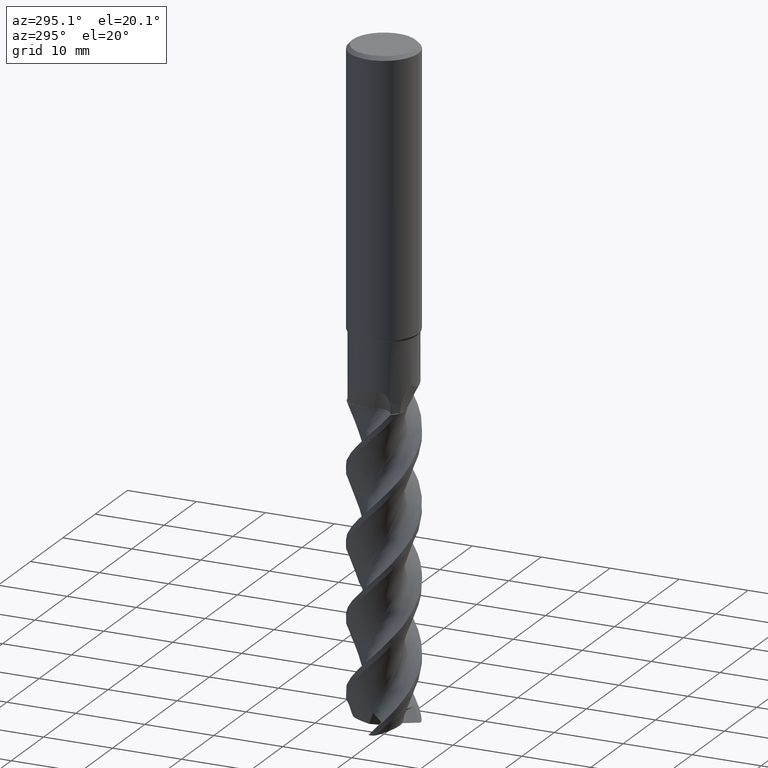
[diagram: clean part render]
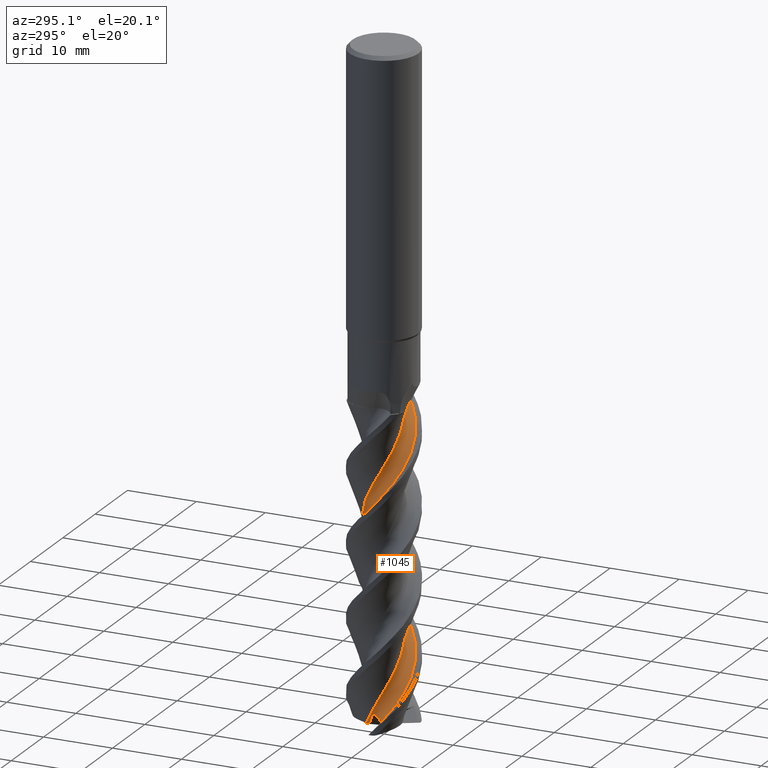
[diagram: same view with one face highlighted and labeled with its STEP entity id]
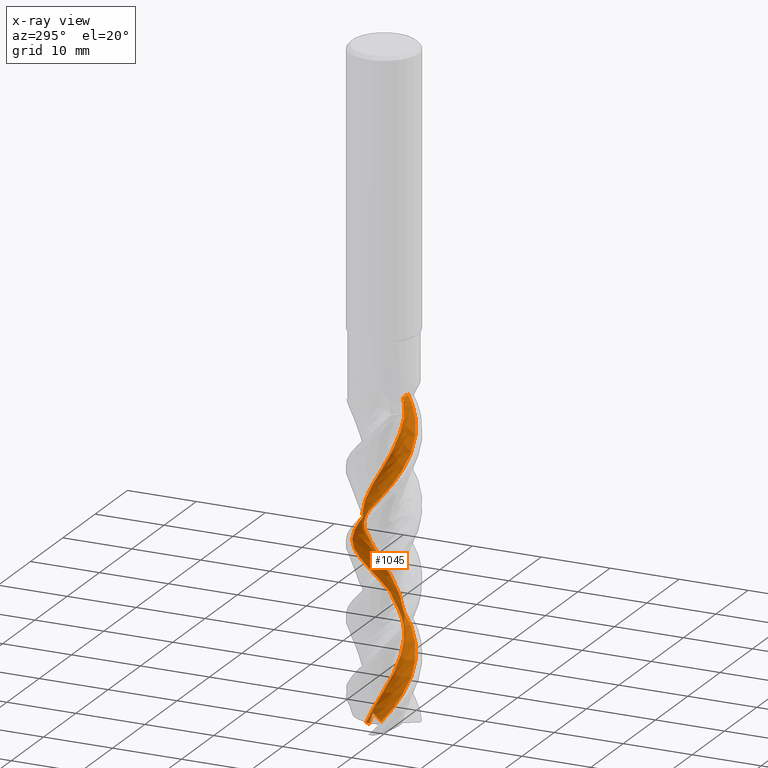
[diagram: x-ray of the same camera — body ghosted, the highlighted face saturated]
A machine part, auxiliary view. The second image highlights one B-rep face of the part: STEP entity #1045.
The next image is the same camera in x-ray: the body ghosted, the highlighted face saturated — about 0% of this face is hidden behind the body in this view.
In plain terms, the highlighted face is a freeform B-spline surface patch.
Its self-contained STEP definition (entity closure, byte-faithful):
#543=EDGE_CURVE('',#565,#1053,#1496,.T.);
#565=VERTEX_POINT('',#1521);
#767=EDGE_CURVE('',#1247,#869,#1743,.T.);
#869=VERTEX_POINT('',#1853);
#987=VERTEX_POINT('',#1984);
#1009=EDGE_CURVE('',#1053,#1227,#2008,.T.);
#1015=EDGE_CURVE('',#1227,#1247,#2014,.T.);
#1045=ADVANCED_FACE('',(#2046),#2047,.T.);
#1053=VERTEX_POINT('',#2055);
#1167=EDGE_CURVE('',#565,#987,#2174,.T.);
#1227=VERTEX_POINT('',#2240);
#1247=VERTEX_POINT('',#2261);
#1297=EDGE_CURVE('',#869,#987,#2321,.T.);
#1496=B_SPLINE_CURVE_WITH_KNOTS('',3,(#2729,#2730,#2731,#2732,#2733,#2734,#2735,#2736,#2737,#2738,#2739,#2740),.UNSPECIFIED.,.F.,.F.,(4,2,2,2,2,4),(0.0,1.035865210293,1.80404917487811,2.41381849699307,2.96124226342868,3.54387238322751),.UNSPECIFIED.);
#1521=CARTESIAN_POINT('',(-3.93480960851676,-1.42380115811476,-93.2284745724258));
#1743=B_SPLINE_CURVE_WITH_KNOTS('',3,(#6286,#6287,#6288,#6289,#6290,#6291,#6292,#6293,#6294,#6295,#6296,#6297,#6298,#6299,#6300,#6301,#6302,#6303,#6304,#6305,#6306,#6307,#6308,#6309,#6310,#6311,#6312,#6313,#6314,#6315,#6316,#6317,#6318,#6319,#6320,#6321,#6322,#6323,#6324,#6325,#6326,#6327,#6328,#6329,#6330,#6331,#6332,#6333,#6334,#6335,#6336,#6337,#6338,#6339,#6340,#6341,#6342,#6343,#6344,#6345,#6346,#6347,#6348,#6349,#6350,#6351,#6352,#6353,#6354,#6355,#6356,#6357,#6358,#6359,#6360,#6361,#6362,#6363),.UNSPECIFIED.,.F.,.F.,(4,1,2,1,2,1,2,1,2,1,2,1,1,1,2,1,1,2,1,1,2,1,1,1,2,1,1,2,1,1,2,1,1,1,2,1,1,2,1,1,2,1,1,1,2,1,1,2,1,1,2,1,1,1,2,1,1,4),(0.0,0.510337287577128,1.02067457515426,1.53101186273138,2.04134915030851,3.06202372546277,4.08269830061702,5.10337287577128,6.12404745092554,7.14472202607979,8.16539660123405,9.1860711763883,10.2067457515426,11.2274203266968,12.2480949018511,13.2687694770053,14.7997813397367,16.3307932024681,17.8618050651995,19.3928169279309,20.4134915030851,21.4341660782394,22.4548406533936,23.4755152285479,24.4961898037021,25.5168643788564,27.0478762415878,28.5788881043192,30.1098999670505,31.6409118297819,32.6615864049362,33.6822609800904,34.7029355552447,35.723610130399,36.7442847055532,37.7649592807075,39.2959711434388,40.8269830061702,42.3579948689016,43.889006731633,44.9096813067873,45.9303558819415,46.9510304570958,47.97170503225,48.9923796074043,50.0130541825585,51.5440660452899,53.0750779080213,54.6060897707527,56.1371016334841,57.1577762086383,58.1784507837926,59.1991253589468,60.2197999341011,61.2404745092554,62.2611490844096,63.792160947141,65.3231728098724),.UNSPECIFIED.);
#1853=CARTESIAN_POINT('',(1.23465585791082,-2.54204627995649,-49.9999999999975));
#1984=CARTESIAN_POINT('',(3.80675281144363,-1.7384235758231,-50.0));
#2008=B_SPLINE_CURVE_WITH_KNOTS('',3,(#9501,#9502,#9503,#9504,#9505,#9506,#9507,#9508,#9509,#9510),.UNSPECIFIED.,.F.,.F.,(4,2,2,2,4),(0.0,1.12898633278389,1.78005022854139,2.54262278572372,5.71190397782374),.UNSPECIFIED.);
#2014=B_SPLINE_CURVE_WITH_KNOTS('',3,(#9517,#9518,#9519,#9520,#9521,#9522,#9523,#9524),.UNSPECIFIED.,.F.,.F.,(4,2,2,4),(0.0,1.00647568565895,1.6257163206789,2.22547352271983),.UNSPECIFIED.);
#2046=FACE_OUTER_BOUND('',#10490,.T.);
#2047=B_SPLINE_SURFACE_WITH_KNOTS('',3,3,((#10491,#10492,#10493,#10494,#10495,#10496,#10497,#10498,#10499,#10500,#10501,#10502,#10503,#10504,#10505,#10506,#10507,#10508,#10509,#10510,#10511,#10512,#10513,#10514,#10515,#10516,#10517,#10518,#10519,#10520,#10521,#10522,#10523,#10524,#10525,#10526,#10527,#10528,#10529,#10530,#10531,#10532,#10533,#10534,#10535,#10536,#10537,#10538,#10539,#10540,#10541,#10542,#10543,#10544,#10545,#10546,#10547,#10548,#10549,#10550,#10551,#10552,#10553,#10554,#10555,#10556,#10557,#10558,#10559,#10560,#10561,#10562,#10563,#10564,#10565,#10566,#10567,#10568,#10569,#10570,#10571,#10572,#10573,#10574,#10575,#10576,#10577),(#10578,#10579,#10580,#10581,#10582,#10583,#10584,#10585,#10586,#10587,#10588,#10589,#10590,#10591,#10592,#10593,#10594,#10595,#10596,#10597,#10598,#10599,#10600,#10601,#10602,#10603,#10604,#10605,#10606,#10607,#10608,#10609,#10610,#10611,#10612,#10613,#10614,#10615,#10616,#10617,#10618,#10619,#10620,#10621,#10622,#10623,#10624,#10625,#10626,#10627,#10628,#10629,#10630,#10631,#10632,#10633,#10634,#10635,#10636,#10637,#10638,#10639,#10640,#10641,#10642,#10643,#10644,#10645,#10646,#10647,#10648,#10649,#10650,#10651,#10652,#10653,#10654,#10655,#10656,#10657,#10658,#10659,#10660,#10661,#10662,#10663,#10664),(#10665,#10666,#10667,#10668,#10669,#10670,#10671,#10672,#10673,#10674,#10675,#10676,#10677,#10678,#10679,#10680,#10681,#10682,#10683,#10684,#10685,#10686,#10687,#10688,#10689,#10690,#10691,#10692,#10693,#10694,#10695,#10696,#10697,#10698,#10699,#10700,#10701,#10702,#10703,#10704,#10705,#10706,#10707,#10708,#10709,#10710,#10711,#10712,#10713,#10714,#10715,#10716,#10717,#10718,#10719,#10720,#10721,#10722,#10723,#10724,#10725,#10726,#10727,#10728,#10729,#10730,#10731,#10732,#10733,#10734,#10735,#10736,#10737,#10738,#10739,#10740,#10741,#10742,#10743,#10744,#10745,#10746,#10747,#10748,#10749,#10750,#10751),(#10752,#10753,#10754,#10755,#10756,#10757,#10758,#10759,#10760,#10761,#10762,#10763,#10764,#10765,#10766,#10767,#10768,#10769,#10770,#10771,#10772,#10773,#10774,#10775,#10776,#10777,#10778,#10779,#10780,#10781,#10782,#10783,#10784,#10785,#10786,#10787,#10788,#10789,#10790,#10791,#10792,#10793,#10794,#10795,#10796,#10797,#10798,#10799,#10800,#10801,#10802,#10803,#10804,#10805,#10806,#10807,#10808,#10809,#10810,#10811,#10812,#10813,#10814,#10815,#10816,#10817,#10818,#10819,#10820,#10821,#10822,#10823,#10824,#10825,#10826,#10827,#10828,#10829,#10830,#10831,#10832,#10833,#10834,#10835,#10836,#10837,#10838),(#10839,#10840,#10841,#10842,#10843,#10844,#10845,#10846,#10847,#10848,#10849,#10850,#10851,#10852,#10853,#10854,#10855,#10856,#10857,#10858,#10859,#10860,#10861,#10862,#10863,#10864,#10865,#10866,#10867,#10868,#10869,#10870,#10871,#10872,#10873,#10874,#10875,#10876,#10877,#10878,#10879,#10880,#10881,#10882,#10883,#10884,#10885,#10886,#10887,#10888,#10889,#10890,#10891,#10892,#10893,#10894,#10895,#10896,#10897,#10898,#10899,#10900,#10901,#10902,#10903,#10904,#10905,#10906,#10907,#10908,#10909,#10910,#10911,#10912,#10913,#10914,#10915,#10916,#10917,#10918,#10919,#10920,#10921,#10922,#10923,#10924,#10925),(#10926,#10927,#10928,#10929,#10930,#10931,#10932,#10933,#10934,#10935,#10936,#10937,#10938,#10939,#10940,#10941,#10942,#10943,#10944,#10945,#10946,#10947,#10948,#10949,#10950,#10951,#10952,#10953,#10954,#10955,#10956,#10957,#10958,#10959,#10960,#10961,#10962,#10963,#10964,#10965,#10966,#10967,#10968,#10969,#10970,#10971,#10972,#10973,#10974,#10975,#10976,#10977,#10978,#10979,#10980,#10981,#10982,#10983,#10984,#10985,#10986,#10987,#10988,#10989,#10990,#10991,#10992,#10993,#10994,#10995,#10996,#10997,#10998,#10999,#11000,#11001,#11002,#11003,#11004,#11005,#11006,#11007,#11008,#11009,#11010,#11011,#11012),(#11013,#11014,#11015,#11016,#11017,#11018,#11019,#11020,#11021,#11022,#11023,#11024,#11025,#11026,#11027,#11028,#11029,#11030,#11031,#11032,#11033,#11034,#11035,#11036,#11037,#11038,#11039,#11040,#11041,#11042,#11043,#11044,#11045,#11046,#11047,#11048,#11049,#11050,#11051,#11052,#11053,#11054,#11055,#11056,#11057,#11058,#11059,#11060,#11061,#11062,#11063,#11064,#11065,#11066,#11067,#11068,#11069,#11070,#11071,#11072,#11073,#11074,#11075,#11076,#11077,#11078,#11079,#11080,#11081,#11082,#11083,#11084,#11085,#11086,#11087,#11088,#11089,#11090,#11091,#11092,#11093,#11094,#11095,#11096,#11097,#11098,#11099)),.UNSPECIFIED.,.F.,.F.,.F.,(4,1,1,1,4),(4,1,2,1,2,1,2,1,2,1,2,1,1,1,2,1,1,1,2,1,1,1,2,1,1,1,2,1,1,1,2,1,1,1,2,1,1,1,2,1,1,1,2,1,1,1,2,1,1,1,2,1,1,1,2,1,1,1,2,1,1,1,2,1,1,1,4),(-1.0741206365629E-016,0.362155819767068,0.724311639534135,1.0864674593012,1.44862327906827),(0.0,0.510337287577128,1.02067457515426,1.53101186273138,2.04134915030851,3.06202372546277,4.08269830061702,5.10337287577128,6.12404745092554,7.14472202607979,8.16539660123405,9.1860711763883,10.2067457515426,11.2274203266968,12.2480949018511,13.2687694770053,14.2894440521596,15.3101186273138,16.3307932024681,17.3514677776224,18.3721423527766,19.3928169279309,20.4134915030851,21.4341660782394,22.4548406533936,23.4755152285479,24.4961898037021,25.5168643788564,26.5375389540107,27.5582135291649,28.5788881043192,29.5995626794734,30.6202372546277,31.6409118297819,32.6615864049362,33.6822609800904,34.7029355552447,35.723610130399,36.7442847055532,37.7649592807075,38.7856338558617,39.806308431016,40.8269830061702,41.8476575813245,42.8683321564788,43.889006731633,44.9096813067873,45.9303558819415,46.9510304570958,47.97170503225,48.9923796074043,50.0130541825585,51.0337287577128,52.054403332867,53.0750779080213,54.0957524831756,55.1164270583298,56.1371016334841,57.1577762086383,58.1784507837926,59.1991253589468,60.2197999341011,61.2404745092554,62.2611490844096,63.2818236595639,64.3024982347181,65.3231728098724),.UNSPECIFIED.);
#2055=CARTESIAN_POINT('',(-2.67644156230329,0.358706500887281,-92.6615050725075));
#2174=B_SPLINE_CURVE_WITH_KNOTS('',3,(#11634,#11635,#11636,#11637,#11638,#11639,#11640,#11641,#11642,#11643,#11644,#11645,#11646,#11647,#11648,#11649,#11650,#11651,#11652,#11653,#11654,#11655,#11656,#11657,#11658,#11659,#11660,#11661,#11662,#11663,#11664,#11665,#11666,#11667,#11668,#11669,#11670,#11671,#11672,#11673,#11674,#11675,#11676,#11677,#11678,#11679,#11680,#11681,#11682,#11683,#11684,#11685,#11686,#11687,#11688,#11689,#11690,#11691,#11692,#11693,#11694,#11695,#11696,#11697,#11698,#11699,#11700,#11701,#11702,#11703,#11704,#11705,#11706,#11707,#11708,#11709,#11710,#11711,#11712,#11713,#11714,#11715,#11716,#11717,#11718,#11719,#11720),.UNSPECIFIED.,.F.,.F.,(4,1,2,1,2,1,2,1,2,1,2,1,1,1,2,1,1,1,2,1,1,1,2,1,1,1,2,1,1,1,2,1,1,1,2,1,1,1,2,1,1,1,2,1,1,1,2,1,1,1,2,1,1,1,2,1,1,1,2,1,1,1,2,1,1,1,4),(0.0,0.510337287577128,1.02067457515426,1.53101186273138,2.04134915030851,3.06202372546277,4.08269830061702,5.10337287577128,6.12404745092554,7.14472202607979,8.16539660123405,9.1860711763883,10.2067457515426,11.2274203266968,12.2480949018511,13.2687694770053,14.2894440521596,15.3101186273138,16.3307932024681,17.3514677776224,18.3721423527766,19.3928169279309,20.4134915030851,21.4341660782394,22.4548406533936,23.4755152285479,24.4961898037021,25.5168643788564,26.5375389540107,27.5582135291649,28.5788881043192,29.5995626794734,30.6202372546277,31.6409118297819,32.6615864049362,33.6822609800904,34.7029355552447,35.723610130399,36.7442847055532,37.7649592807075,38.7856338558617,39.806308431016,40.8269830061702,41.8476575813245,42.8683321564788,43.889006731633,44.9096813067873,45.9303558819415,46.9510304570958,47.97170503225,48.9923796074043,50.0130541825585,51.0337287577128,52.054403332867,53.0750779080213,54.0957524831756,55.1164270583298,56.1371016334841,57.1577762086383,58.1784507837926,59.1991253589468,60.2197999341011,61.2404745092554,62.2611490844096,63.2818236595639,64.3024982347181,65.3231728098724),.UNSPECIFIED.);
#2240=CARTESIAN_POINT('',(-2.44392625852409,1.00823219503187,-94.3696753129615));
#2261=CARTESIAN_POINT('',(-2.39872329368533,1.49630524382028,-94.3031026435915));
#2321=B_SPLINE_CURVE_WITH_KNOTS('',3,(#12456,#12457,#12458,#12459,#12460,#12461,#12462,#12463,#12464,#12465),.UNSPECIFIED.,.F.,.F.,(4,2,2,2,4),(0.0,0.794402574972134,1.58878872050005,2.27127050473714,2.95374711721419),.UNSPECIFIED.);
#2729=CARTESIAN_POINT('',(-3.93480960851674,-1.42380115811452,-93.2284745724261));
#2730=CARTESIAN_POINT('',(-3.64504148950264,-1.25031452355759,-93.3003140210394));
#2731=CARTESIAN_POINT('',(-3.38331578883508,-1.05451823839612,-93.3318075778357));
#2732=CARTESIAN_POINT('',(-3.01185995851895,-0.692878868217989,-93.3049720972377));
#2733=CARTESIAN_POINT('',(-2.88719349896624,-0.539063307961689,-93.2682561814077));
#2734=CARTESIAN_POINT('',(-2.7257931132545,-0.27089003490792,-93.1617603669026));
#2735=CARTESIAN_POINT('',(-2.67341722151397,-0.150110657595778,-93.0983722590566));
#2736=CARTESIAN_POINT('',(-2.62401132870421,0.0745605439472255,-92.9439971316176));
#2737=CARTESIAN_POINT('',(-2.6229464833738,0.173725977137744,-92.8601103507144));
#2738=CARTESIAN_POINT('',(-2.66707823823901,0.360162714873586,-92.6673706003165));
#2739=CARTESIAN_POINT('',(-2.71407546018051,0.44148608045682,-92.5622304996107));
#2740=CARTESIAN_POINT('',(-2.77801605583499,0.508236687570853,-92.4566721856843));
#6286=CARTESIAN_POINT('',(2.44506508954768,1.37756437868769,-105.0));
#6287=CARTESIAN_POINT('',(2.45971965629208,1.37448408088869,-104.83074046336));
#6288=CARTESIAN_POINT('',(2.45166279514969,1.4234455218647,-104.491723815391));
#6289=CARTESIAN_POINT('',(2.35622741006953,1.57938059836103,-104.152536241398));
#6290=CARTESIAN_POINT('',(2.20305817444601,1.77607436760602,-103.814444091074));
#6291=CARTESIAN_POINT('',(2.05042584487697,1.94882034082779,-103.476545806715));
#6292=CARTESIAN_POINT('',(1.90696906585168,2.08296464470905,-103.13827796024));
#6293=CARTESIAN_POINT('',(1.70047696206932,2.26237195638133,-102.630166756505));
#6294=CARTESIAN_POINT('',(1.4020398042018,2.47508404426243,-101.952652741788));
#6295=CARTESIAN_POINT('',(1.05245102246383,2.63044445072742,-101.275303014533));
#6296=CARTESIAN_POINT('',(0.676406238071495,2.7497940705744,-100.598430272178));
#6297=CARTESIAN_POINT('',(0.299983043222363,2.82797869011154,-99.9216726300073));
#6298=CARTESIAN_POINT('',(-0.0794152007435814,2.83092686304464,-99.2446416286084));
#6299=CARTESIAN_POINT('',(-0.462451285885164,2.79378769239405,-98.5675682584083));
#6300=CARTESIAN_POINT('',(-0.836153945629211,2.71925762837642,-97.8904170623025));
#6301=CARTESIAN_POINT('',(-1.19541201928058,2.56746438926892,-97.2130485063697));
#6302=CARTESIAN_POINT('',(-1.5453784339137,2.37108163779281,-96.5358921646541));
#6303=CARTESIAN_POINT('',(-1.86070952800821,2.14787466832905,-95.859107881458));
#6304=CARTESIAN_POINT('',(-2.24278735555008,1.74865752859393,-94.8436469967567));
#6305=CARTESIAN_POINT('',(-2.54293730576299,1.28041791012306,-93.8275004205442));
#6306=CARTESIAN_POINT('',(-2.68310514064673,0.913065604566695,-93.1500069636332));
#6307=CARTESIAN_POINT('',(-2.78369977485229,0.51639719906959,-92.4730157360315));
#6308=CARTESIAN_POINT('',(-2.85276882422092,0.0308718993966089,-91.6273216253801));
#6309=CARTESIAN_POINT('',(-2.7805824694778,-0.700880260595582,-90.2735889974565));
#6310=CARTESIAN_POINT('',(-2.56189454836669,-1.23471284156171,-89.2570641186719));
#6311=CARTESIAN_POINT('',(-2.2345344453037,-1.75225816938169,-88.2413955851592));
#6312=CARTESIAN_POINT('',(-1.85258807148208,-2.18427028554832,-87.2266294944113));
#6313=CARTESIAN_POINT('',(-1.2312074379912,-2.57914025781897,-85.87212169479));
#6314=CARTESIAN_POINT('',(-0.764533401390055,-2.72886650415916,-85.0252203520347));
#6315=CARTESIAN_POINT('',(-0.364155220464499,-2.80759030843459,-84.3481409403302));
#6316=CARTESIAN_POINT('',(0.0260303838778408,-2.84195817921462,-83.6714904904806));
#6317=CARTESIAN_POINT('',(0.579342544009179,-2.7839505818685,-82.6562513343718));
#6318=CARTESIAN_POINT('',(1.1114696679733,-2.62071832101541,-81.6402380723557));
#6319=CARTESIAN_POINT('',(1.45515392801794,-2.43187084249665,-80.9627231282969));
#6320=CARTESIAN_POINT('',(1.78777510841052,-2.19525956272181,-80.2856403103185));
#6321=CARTESIAN_POINT('',(2.15427121332544,-1.87045540171496,-79.43983910771));
#6322=CARTESIAN_POINT('',(2.57318667118027,-1.26572739763177,-78.0860094933205));
#6323=CARTESIAN_POINT('',(2.75201672716518,-0.716870436026929,-77.0694963909254));
#6324=CARTESIAN_POINT('',(2.83743936941966,-0.110625950687077,-76.0538704312313));
#6325=CARTESIAN_POINT('',(2.82596706483553,0.465586026448081,-75.0391323011354));
#6326=CARTESIAN_POINT('',(2.60815749544537,1.16855056975149,-73.6846292747505));
#6327=CARTESIAN_POINT('',(2.34940871923556,1.58482975794146,-72.8377227547076));
#6328=CARTESIAN_POINT('',(2.09514273317577,1.90411350835897,-72.160639364738));
#6329=CARTESIAN_POINT('',(1.81991702423228,2.18296983088787,-71.4839868805673));
#6330=CARTESIAN_POINT('',(1.36053729327153,2.49698209184252,-70.468748084423));
#6331=CARTESIAN_POINT('',(0.84924236889861,2.71702850118524,-69.4527362885797));
#6332=CARTESIAN_POINT('',(0.465054421762471,2.79555628090216,-68.7752216265775));
#6333=CARTESIAN_POINT('',(0.0583956285472825,2.83052377900433,-68.0981380557832));
#6334=CARTESIAN_POINT('',(-0.431174162142525,2.82020615117137,-67.2523356529373));
#6335=CARTESIAN_POINT('',(-1.14192104746012,2.63047211157439,-65.8985043182188));
#6336=CARTESIAN_POINT('',(-1.63352594115642,2.32789635227954,-64.881991052073));
#6337=CARTESIAN_POINT('',(-2.09108290680619,1.92111418884541,-63.8663656176289));
#6338=CARTESIAN_POINT('',(-2.45534498411464,1.47449910991759,-62.8516279442937));
#6339=CARTESIAN_POINT('',(-2.74438956564043,0.797702048864901,-61.4971255536092));
#6340=CARTESIAN_POINT('',(-2.81664666389762,0.312915696143639,-60.6502195362388));
#6341=CARTESIAN_POINT('',(-2.82953158275668,-0.0950381405271612,-59.9731365903534));
#6342=CARTESIAN_POINT('',(-2.8002713125465,-0.485743871005694,-59.2964842754465));
#6343=CARTESIAN_POINT('',(-2.65340906911882,-1.02245658939629,-58.2812448427078));
#6344=CARTESIAN_POINT('',(-2.40614425610827,-1.52116448791766,-57.2652316429534));
#6345=CARTESIAN_POINT('',(-2.16413946446004,-1.82973052787559,-56.5877157368332));
#6346=CARTESIAN_POINT('',(-1.87679974147604,-2.11964264284535,-55.9106309514672));
#6347=CARTESIAN_POINT('',(-1.49694605485285,-2.42870388473387,-55.0648285082778));
#6348=CARTESIAN_POINT('',(-0.832422470100466,-2.74415249047187,-53.7110010663181));
#6349=CARTESIAN_POINT('',(-0.261992054010584,-2.83176530893304,-52.6944903820859));
#6350=CARTESIAN_POINT('',(0.349903876460122,-2.81797547134881,-51.6788645320834));
#6351=CARTESIAN_POINT('',(0.916654460263415,-2.71346164416595,-50.6641213812485));
#6352=CARTESIAN_POINT('',(1.57546808382734,-2.38453352469148,-49.3096214553807));
#6353=CARTESIAN_POINT('',(1.94459304944966,-2.06147799612845,-48.4627327460382));
#6354=CARTESIAN_POINT('',(2.21861894258075,-1.75859139126824,-47.7856706295188));
#6355=CARTESIAN_POINT('',(2.44914411882352,-1.44178197445779,-47.1090337902888));
#6356=CARTESIAN_POINT('',(2.68438319470367,-0.938084832872273,-46.093777893007));
#6357=CARTESIAN_POINT('',(2.81868151933395,-0.398530373882118,-45.0776950212844));
#6358=CARTESIAN_POINT('',(2.83404848898018,-0.00681690283881031,-44.4000940857756));
#6359=CARTESIAN_POINT('',(2.80268520850397,0.400381488914216,-43.7229076422409));
#6360=CARTESIAN_POINT('',(2.71296437461548,0.882726206077016,-42.8770513655892));
#6361=CARTESIAN_POINT('',(2.40981361880486,1.55363568890231,-41.5234559412634));
#6362=CARTESIAN_POINT('',(2.03468847668322,1.98667681392789,-40.5073238215625));
#6363=CARTESIAN_POINT('',(1.80071962643478,2.17790002537916,-39.9996927054519));
#9501=CARTESIAN_POINT('',(-2.78365023381967,-0.486832322613349,-90.6665627478646));
#9502=CARTESIAN_POINT('',(-2.79212158133007,-0.328077062376461,-91.0076614908472));
#9503=CARTESIAN_POINT('',(-2.78077643172196,-0.169327302614234,-91.3719345942729));
#9504=CARTESIAN_POINT('',(-2.74617297516089,0.0630674776875275,-91.9262518168379));
#9505=CARTESIAN_POINT('',(-2.72966395707579,0.146509910780244,-92.1300611080389));
#9506=CARTESIAN_POINT('',(-2.68740779290336,0.324158309539796,-92.572287233654));
#9507=CARTESIAN_POINT('',(-2.65699603053319,0.427167400054267,-92.8356258240833));
#9508=CARTESIAN_POINT('',(-2.54399848074932,0.794639969575463,-93.7803283900672));
#9509=CARTESIAN_POINT('',(-2.4196526732573,1.13177928510568,-94.6712417452804));
#9510=CARTESIAN_POINT('',(-2.15807300234442,1.50391512950431,-95.8001051286854));
#9517=CARTESIAN_POINT('',(-3.33818994604504,-0.241799118062085,-94.3211195037878));
#9518=CARTESIAN_POINT('',(-3.07107663110971,-0.043399930123862,-94.3640502732636));
#9519=CARTESIAN_POINT('',(-2.84811672356968,0.193181488408014,-94.3883536932552));
#9520=CARTESIAN_POINT('',(-2.58576650708814,0.611660759348358,-94.3941900037382));
#9521=CARTESIAN_POINT('',(-2.50628272939359,0.783603622209115,-94.3886220298162));
#9522=CARTESIAN_POINT('',(-2.40676619944,1.13850051126546,-94.3589683632226));
#9523=CARTESIAN_POINT('',(-2.38581143997889,1.31805326451962,-94.3356946829571));
#9524=CARTESIAN_POINT('',(-2.39872329378577,1.49630524381272,-94.3031026435737));
#10490=EDGE_LOOP('',(#15667,#15668,#15669,#15670,#15671,#15672));
#10491=CARTESIAN_POINT('',(2.44506508959477,1.37756437877591,-105.0));
#10492=CARTESIAN_POINT('',(2.45971965633882,1.37448408097704,-104.83074046336));
#10493=CARTESIAN_POINT('',(2.45166279519523,1.42344552195469,-104.491723815391));
#10494=CARTESIAN_POINT('',(2.35622741010803,1.57938059845174,-104.152536241398));
#10495=CARTESIAN_POINT('',(2.20305817447784,1.77607436770254,-103.814444091075));
#10496=CARTESIAN_POINT('',(2.05042584489951,1.94882034092433,-103.476545806715));
#10497=CARTESIAN_POINT('',(1.90696906586955,2.08296464480806,-103.13827796024));
#10498=CARTESIAN_POINT('',(1.70047696207392,2.2623719564806,-102.630166756505));
#10499=CARTESIAN_POINT('',(1.4020398041967,2.47508404436313,-101.952652741788));
#10500=CARTESIAN_POINT('',(1.05245102244498,2.630444450826,-101.275303014533));
#10501=CARTESIAN_POINT('',(0.676406238038107,2.74979407066887,-100.598430272178));
#10502=CARTESIAN_POINT('',(0.299983043178182,2.82797869020256,-99.9216726300058));
#10503=CARTESIAN_POINT('',(-0.079415200802566,2.83092686312496,-99.2446416286115));
#10504=CARTESIAN_POINT('',(-0.462451285950552,2.79378769247036,-98.5675682584053));
#10505=CARTESIAN_POINT('',(-0.836153945707022,2.7192576284399,-97.8904170623041));
#10506=CARTESIAN_POINT('',(-1.19541201936639,2.56746438932229,-97.2130485063697));
#10507=CARTESIAN_POINT('',(-1.5453784340044,2.37108163783349,-96.5358921646541));
#10508=CARTESIAN_POINT('',(-1.86070952810567,2.14787466835667,-95.859107881458));
#10509=CARTESIAN_POINT('',(-2.2427873556508,1.74865752860292,-94.8436469967567));
#10510=CARTESIAN_POINT('',(-2.54293730586265,1.28041791011273,-93.8275004205442));
#10511=CARTESIAN_POINT('',(-2.683105140744,0.913065604541871,-93.1500069636332));
#10512=CARTESIAN_POINT('',(-2.78369977494491,0.516397199031636,-92.4730157360315));
#10513=CARTESIAN_POINT('',(-2.8391703900515,0.127943955576398,-91.7964496409163));
#10514=CARTESIAN_POINT('',(-2.8111638948071,-0.427777941522248,-90.78129658718));
#10515=CARTESIAN_POINT('',(-2.67714072959316,-0.967656798444332,-89.7653158937063));
#10516=CARTESIAN_POINT('',(-2.50733453123819,-1.32097039628814,-89.0877860297531));
#10517=CARTESIAN_POINT('',(-2.28909446251717,-1.66600061483632,-88.410673674078));
#10518=CARTESIAN_POINT('',(-2.04556745479724,-1.97315247234851,-87.7339986784017));
#10519=CARTESIAN_POINT('',(-1.62262145300971,-2.33518398890286,-86.7187442181254));
#10520=CARTESIAN_POINT('',(-1.13795518763263,-2.60928135837998,-85.7027307700689));
#10521=CARTESIAN_POINT('',(-0.764533401358848,-2.72886650425344,-85.0252203520347));
#10522=CARTESIAN_POINT('',(-0.364155220422658,-2.8075903085265,-84.3481409403302));
#10523=CARTESIAN_POINT('',(0.0260303839341257,-2.84195817929797,-83.6714904904866));
#10524=CARTESIAN_POINT('',(0.579342544080811,-2.78395058194014,-82.6562513343718));
#10525=CARTESIAN_POINT('',(1.11146966805561,-2.62071832107195,-81.6402380723436));
#10526=CARTESIAN_POINT('',(1.45515392810987,-2.43187084254035,-80.962723128309));
#10527=CARTESIAN_POINT('',(1.78777510850399,-2.19525956275314,-80.2856403103064));
#10528=CARTESIAN_POINT('',(2.08115387502072,-1.93552823599372,-79.6089886617182));
#10529=CARTESIAN_POINT('',(2.41960326111696,-1.49381965498906,-78.5937511442692));
#10530=CARTESIAN_POINT('',(2.66702749915036,-0.995194598543272,-77.577740118738));
#10531=CARTESIAN_POINT('',(2.76625383430258,-0.615829688435183,-76.900225397643));
#10532=CARTESIAN_POINT('',(2.82320226246422,-0.211666698195807,-76.2231414245137));
#10533=CARTESIAN_POINT('',(2.83638680002519,0.179914429784079,-75.5464884330857));
#10534=CARTESIAN_POINT('',(2.74845384281142,0.729372766365168,-74.5312491972185));
#10535=CARTESIAN_POINT('',(2.55659797836815,1.25190315662635,-73.5152372952379));
#10536=CARTESIAN_POINT('',(2.34940871927591,1.58482975803138,-72.8377227547076));
#10537=CARTESIAN_POINT('',(2.09514273320028,1.90411350845824,-72.160639364738));
#10538=CARTESIAN_POINT('',(1.81991702424516,2.18296983098726,-71.4839868805552));
#10539=CARTESIAN_POINT('',(1.36053729326289,2.49698209194292,-70.4687480844351));
#10540=CARTESIAN_POINT('',(0.849242368871358,2.71702850128038,-69.4527362885918));
#10541=CARTESIAN_POINT('',(0.465054421722338,2.79555628099644,-68.7752216265775));
#10542=CARTESIAN_POINT('',(0.0583956284946637,2.83052377908724,-68.0981380557832));
#10543=CARTESIAN_POINT('',(-0.333326350384329,2.82247271018271,-67.4214854491827));
#10544=CARTESIAN_POINT('',(-0.877211144954338,2.70490009110616,-66.4062466007457));
#10545=CARTESIAN_POINT('',(-1.38857523365733,2.48501872021797,-65.3902348164105));
#10546=CARTESIAN_POINT('',(-1.70978543552347,2.26009932507428,-64.7127201463323));
#10547=CARTESIAN_POINT('',(-2.01482341263157,1.98891121610519,-64.0356365233696));
#10548=CARTESIAN_POINT('',(-2.27835962906691,1.69898302171858,-63.3589838519209));
#10549=CARTESIAN_POINT('',(-2.56702487059864,1.2232632356487,-62.3437450737697));
#10550=CARTESIAN_POINT('',(-2.75904861335741,0.700794174848348,-61.3277336747762));
#10551=CARTESIAN_POINT('',(-2.81664666398785,0.31291569609823,-60.6502195362146));
#10552=CARTESIAN_POINT('',(-2.82953158283836,-0.0950381405839678,-59.9731365903776));
#10553=CARTESIAN_POINT('',(-2.80027131261989,-0.48574387107367,-59.2964842754344));
#10554=CARTESIAN_POINT('',(-2.65340906917868,-1.0224565894776,-58.2812448427078));
#10555=CARTESIAN_POINT('',(-2.40614425615073,-1.521164488008,-57.2652316429534));
#10556=CARTESIAN_POINT('',(-2.16413946449002,-1.82973052797493,-56.5877157368332));
#10557=CARTESIAN_POINT('',(-1.87679974149007,-2.11964264294112,-55.9106309514672));
#10558=CARTESIAN_POINT('',(-1.57299799190224,-2.36708903428187,-55.2339783169838));
#10559=CARTESIAN_POINT('',(-1.08235116920311,-2.62953778675543,-54.2187417741265));
#10560=CARTESIAN_POINT('',(-0.550331106852335,-2.79295374488673,-53.2027330011647));
#10561=CARTESIAN_POINT('',(-0.160009398883559,-2.8294670027558,-52.5252194070613));
#10562=CARTESIAN_POINT('',(0.247921221444463,-2.82027377769217,-51.8481355071079));
#10563=CARTESIAN_POINT('',(0.636425995093526,-2.76994560751977,-51.1714802779726));
#10564=CARTESIAN_POINT('',(1.16455548704217,-2.5942079900551,-50.156238795298));
#10565=CARTESIAN_POINT('',(1.64941995770316,-2.32009364674253,-49.140233041655));
#10566=CARTESIAN_POINT('',(1.94459304954696,-2.06147799615271,-48.4627327460381));
#10567=CARTESIAN_POINT('',(2.21861894268066,-1.75859139127732,-47.7856706295188));
#10568=CARTESIAN_POINT('',(2.44914411892409,-1.4417819744547,-47.1090337903008));
#10569=CARTESIAN_POINT('',(2.68438319480176,-0.9380848328486,-46.0937778929949));
#10570=CARTESIAN_POINT('',(2.81868151942506,-0.398530373839152,-45.0776950212602));
#10571=CARTESIAN_POINT('',(2.83404848906466,-0.00681690278370561,-44.4000940857998));
#10572=CARTESIAN_POINT('',(2.80268520857934,0.400381488979309,-43.7229076422167));
#10573=CARTESIAN_POINT('',(2.73109073999178,0.786343238574237,-43.0462123262049));
#10574=CARTESIAN_POINT('',(2.52648989084711,1.30443448801682,-42.0311004195484));
#10575=CARTESIAN_POINT('',(2.22760389379279,1.77202961897317,-41.0153759641133));
#10576=CARTESIAN_POINT('',(1.95669885995341,2.05041788451108,-40.3381134495256));
#10577=CARTESIAN_POINT('',(1.80071962644631,2.1779000254785,-39.9996927054519));
#10578=CARTESIAN_POINT('',(2.22852594899172,1.49315843100046,-105.0));
#10579=CARTESIAN_POINT('',(2.24308747742684,1.48990384605492,-104.830739718623));
#10580=CARTESIAN_POINT('',(2.23237345052681,1.53406261417429,-104.491782564537));
#10581=CARTESIAN_POINT('',(2.13015623734189,1.67557864219478,-104.152674975748));
#10582=CARTESIAN_POINT('',(1.96957562824108,1.85254672624009,-103.814526302445));
#10583=CARTESIAN_POINT('',(1.81130940347031,2.00647313441532,-103.476547588527));
#10584=CARTESIAN_POINT('',(1.66480795629658,2.12386350362633,-103.138245714783));
#10585=CARTESIAN_POINT('',(1.45510190420157,2.27958201280763,-102.630171993008));
#10586=CARTESIAN_POINT('',(1.15542365413296,2.46030026355092,-101.952711775612));
#10587=CARTESIAN_POINT('',(0.811046866731096,2.58283249946925,-101.275395167507));
#10588=CARTESIAN_POINT('',(0.443920509562751,2.66921440756547,-100.598496029096));
#10589=CARTESIAN_POINT('',(0.0795738464540895,2.7162503182806,-99.9216976779382));
#10590=CARTESIAN_POINT('',(-0.282040888317642,2.69138024509802,-99.244660148603));
#10591=CARTESIAN_POINT('',(-0.644297919617269,2.62807086647743,-98.567585530822));
#10592=CARTESIAN_POINT('',(-0.994857909055689,2.52981115788767,-97.8904427882085));
#10593=CARTESIAN_POINT('',(-1.3261507897153,2.3589955844825,-97.2131098187324));
#10594=CARTESIAN_POINT('',(-1.6455153734431,2.14630556206702,-96.5359625675323));
#10595=CARTESIAN_POINT('',(-1.92969592587924,1.91062357064783,-95.8591409078525));
#10596=CARTESIAN_POINT('',(-2.26432766857052,1.50258194926005,-94.8436594846));
#10597=CARTESIAN_POINT('',(-2.51596269388466,1.03478361913542,-93.8275780113108));
#10598=CARTESIAN_POINT('',(-2.6228160658677,0.674470583925317,-93.1501357694249));
#10599=CARTESIAN_POINT('',(-2.68991721992336,0.288873554927443,-92.4731329999327));
#10600=CARTESIAN_POINT('',(-2.71446969793412,-0.0853928253059496,-91.7965022937491));
#10601=CARTESIAN_POINT('',(-2.6472015664858,-0.61254230255894,-90.7812902535436));
#10602=CARTESIAN_POINT('',(-2.48015921765274,-1.1168527489599,-89.7653539464218));
#10603=CARTESIAN_POINT('',(-2.29261281731806,-1.44120231974604,-89.087879833556));
#10604=CARTESIAN_POINT('',(-2.05941401886852,-1.75436261046925,-88.4107710673943));
#10605=CARTESIAN_POINT('',(-1.80493149802341,-2.02934082697888,-87.7340450498274));
#10606=CARTESIAN_POINT('',(-1.37572358574557,-2.34319689342613,-86.7187442738543));
#10607=CARTESIAN_POINT('',(-0.894182038684325,-2.56882332189568,-85.7027793121333));
#10608=CARTESIAN_POINT('',(-0.529599671424432,-2.65560693079048,-85.0253222118));
#10609=CARTESIAN_POINT('',(-0.142072137033714,-2.70157264321486,-84.3482422748008));
#10610=CARTESIAN_POINT('',(0.232295416823461,-2.70588312497795,-83.6715377393049));
#10611=CARTESIAN_POINT('',(0.754957304094811,-2.61022249020607,-82.65625037189));
#10612=CARTESIAN_POINT('',(1.24976078775135,-2.41593166203152,-81.6402855654255));
#10613=CARTESIAN_POINT('',(1.56355109420111,-2.2109385474147,-80.9628244736859));
#10614=CARTESIAN_POINT('',(1.86354285244119,-1.96112265199402,-80.2857415973172));
#10615=CARTESIAN_POINT('',(2.124212237749,-1.69220113598395,-79.6090359779574));
#10616=CARTESIAN_POINT('',(2.41423803091304,-1.2468512292417,-78.5937500430569));
#10617=CARTESIAN_POINT('',(2.61344378288751,-0.753966921730871,-77.577787205868));
#10618=CARTESIAN_POINT('',(2.68039260481349,-0.385202662773642,-76.9003263264673));
#10619=CARTESIAN_POINT('',(2.70531845809256,0.0043522855252357,-76.223242411704));
#10620=CARTESIAN_POINT('',(2.68933902610623,0.378506937900305,-75.5465356474088));
#10621=CARTESIAN_POINT('',(2.56546314380366,0.8953142573751,-74.5312481956562));
#10622=CARTESIAN_POINT('',(2.34461587619025,1.3788898028085,-73.5152845676645));
#10623=CARTESIAN_POINT('',(2.1229258700156,1.68109241216153,-72.8378238886774));
#10624=CARTESIAN_POINT('',(1.85724396667235,1.96708154018891,-72.1607404403417));
#10625=CARTESIAN_POINT('',(1.57461446414195,2.21278058725051,-71.4840341658389));
#10626=CARTESIAN_POINT('',(1.11422231333055,2.47824456226901,-70.4687470689756));
#10627=CARTESIAN_POINT('',(0.611271947954479,2.65045453771479,-69.4527835358436));
#10628=CARTESIAN_POINT('',(0.239417899241855,2.69732624325102,-68.7753227366566));
#10629=CARTESIAN_POINT('',(-0.150919238925747,2.70110939054295,-68.0982391658623));
#10630=CARTESIAN_POINT('',(-0.523660174354631,2.66488125982685,-67.4215327423214));
#10631=CARTESIAN_POINT('',(-1.03299467538954,2.51318766294673,-66.4062456114767));
#10632=CARTESIAN_POINT('',(-1.50389076408575,2.26646818794394,-65.3902821139108));
#10633=CARTESIAN_POINT('',(-1.79363675376905,2.02873396135659,-64.7128212976438));
#10634=CARTESIAN_POINT('',(-2.06481074184211,1.747950513624,-64.035737674681));
#10635=CARTESIAN_POINT('',(-2.29483732340645,1.45242569356596,-63.3590312041848));
#10636=CARTESIAN_POINT('',(-2.5349705078996,0.978325097935083,-62.3437441266455));
#10637=CARTESIAN_POINT('',(-2.67967988146447,0.46678001763237,-61.3277809555825));
#10638=CARTESIAN_POINT('',(-2.70633655150285,0.0929323875414091,-60.6503206329169));
#10639=CARTESIAN_POINT('',(-2.68896729923174,-0.297034373997023,-59.9732375703478));
#10640=CARTESIAN_POINT('',(-2.63259995865869,-0.667260616092991,-59.296531438996));
#10641=CARTESIAN_POINT('',(-2.45353876959939,-1.16762555282786,-58.2812437895777));
#10642=CARTESIAN_POINT('',(-2.18166726260846,-1.6244704720978,-57.2652790410397));
#10643=CARTESIAN_POINT('',(-1.92857067526418,-1.90092291321799,-56.5878171301031));
#10644=CARTESIAN_POINT('',(-1.63348421418526,-2.15649889247747,-55.9107325198352));
#10645=CARTESIAN_POINT('',(-1.32590996589939,-2.37018012580654,-55.2340260676224));
#10646=CARTESIAN_POINT('',(-0.839510179285299,-2.58425755477265,-54.218740960761));
#10647=CARTESIAN_POINT('',(-0.320959842015782,-2.70102694934867,-53.2027800834966));
#10648=CARTESIAN_POINT('',(0.0536800156084337,-2.70741108722636,-52.5253201981297));
#10649=CARTESIAN_POINT('',(0.442018078121436,-2.66898914797033,-51.8482363565424));
#10650=CARTESIAN_POINT('',(0.808610259096049,-2.59270366782449,-51.1715276104395));
#10651=CARTESIAN_POINT('',(1.29869452645532,-2.38677240692635,-50.1562381989946));
#10652=CARTESIAN_POINT('',(1.74040127108159,-2.09034271387634,-49.1402799658521));
#10653=CARTESIAN_POINT('',(2.00288392377084,-1.82238898315502,-48.462831735582));
#10654=CARTESIAN_POINT('',(2.24218251423476,-1.51363025309571,-47.7857669342233));
#10655=CARTESIAN_POINT('',(2.4387874762142,-1.19489335409957,-47.1090743386242));
#10656=CARTESIAN_POINT('',(2.62599476811774,-0.698061107719321,-46.0937723339555));
#10657=CARTESIAN_POINT('',(2.71448334742986,-0.174469110924226,-45.0777466261615));
#10658=CARTESIAN_POINT('',(2.7006146920012,0.199959958407366,-44.4002102152353));
#10659=CARTESIAN_POINT('',(2.64110610648583,0.585997373031119,-43.7230366705538));
#10660=CARTESIAN_POINT('',(2.54473970320737,0.948633030600354,-43.0462927480658));
#10661=CARTESIAN_POINT('',(2.31205266474197,1.42706427392074,-42.0311168876424));
#10662=CARTESIAN_POINT('',(1.99330112281117,1.85049037226162,-41.0154054540032));
#10663=CARTESIAN_POINT('',(1.71488573132131,2.09602828174184,-40.3381662449054));
#10664=CARTESIAN_POINT('',(1.55689826535152,2.20622539791413,-39.9997310844123));
#10665=CARTESIAN_POINT('',(1.83782122718522,1.80356651916252,-105.0));
#10666=CARTESIAN_POINT('',(1.85213291361629,1.79999746356197,-104.830738278997));
#10667=CARTESIAN_POINT('',(1.83434755034988,1.83552487788331,-104.491896154598));
#10668=CARTESIAN_POINT('',(1.71329124975016,1.95068936925122,-104.152943212036));
#10669=CARTESIAN_POINT('',(1.53067039122346,2.09092463930754,-103.814685256857));
#10670=CARTESIAN_POINT('',(1.35424997994682,2.20927963175367,-103.476551031777));
#10671=CARTESIAN_POINT('',(1.1955280589538,2.29428156074725,-103.138183371331));
#10672=CARTESIAN_POINT('',(0.970724806996524,2.40380593352786,-102.630182113613));
#10673=CARTESIAN_POINT('',(0.656854778932984,2.52100041279928,-101.952825918268));
#10674=CARTESIAN_POINT('',(0.310885066462019,2.57597859488351,-101.275573340288));
#10675=CARTESIAN_POINT('',(-0.0504735473485264,2.59317080261226,-100.598623169477));
#10676=CARTESIAN_POINT('',(-0.402071427161122,2.57349860126905,-99.9217461041491));
#10677=CARTESIAN_POINT('',(-0.738306192421416,2.48649153781447,-99.2446959607847));
#10678=CARTESIAN_POINT('',(-1.06858985409486,2.3632443534971,-98.5676189219901));
#10679=CARTESIAN_POINT('',(-1.38155670172433,2.20906213130978,-97.8904925281266));
#10680=CARTESIAN_POINT('',(-1.66388996388099,1.98997218401993,-97.2132283688519));
#10681=CARTESIAN_POINT('',(-1.92802866369849,1.73347203259871,-96.5360986841536));
#10682=CARTESIAN_POINT('',(-2.15448349071007,1.46144245228664,-95.8592047546213));
#10683=CARTESIAN_POINT('',(-2.39746719656493,1.01838893183308,-94.843683637352));
#10684=CARTESIAN_POINT('',(-2.55192550034256,0.533716239043745,-93.8277280546935));
#10685=CARTESIAN_POINT('',(-2.58958357026095,0.175286284565656,-93.150384784092));
#10686=CARTESIAN_POINT('',(-2.58565567120843,-0.200430185486658,-92.4733597522647));
#10687=CARTESIAN_POINT('',(-2.54318869580305,-0.557643364839742,-91.7966040835811));
#10688=CARTESIAN_POINT('',(-2.38695142968806,-1.042026668412,-90.781278018386));
#10689=CARTESIAN_POINT('',(-2.14086238664611,-1.48729626471667,-89.7654275294359));
#10690=CARTESIAN_POINT('',(-1.90723989222231,-1.76021957206377,-89.0880611793478));
#10691=CARTESIAN_POINT('',(-1.63246353340663,-2.01512461214343,-88.4109593944333));
#10692=CARTESIAN_POINT('',(-1.34429750676674,-2.229775044668,-87.7341347199081));
#10693=CARTESIAN_POINT('',(-0.884935111836924,-2.44958665000375,-86.7187443941124));
#10694=CARTESIAN_POINT('',(-0.391901350238558,-2.57714215050747,-85.7028731498638));
#10695=CARTESIAN_POINT('',(-0.0329895540000718,-2.59509729084116,-85.0255191415836));
#10696=CARTESIAN_POINT('',(0.340830254887282,-2.57085327635748,-84.3484382138536));
#10697=CARTESIAN_POINT('',(0.694567701732752,-2.50926851912763,-83.671629103101));
#10698=CARTESIAN_POINT('',(1.16971955559319,-2.32709495924633,-82.6562484669657));
#10699=CARTESIAN_POINT('',(1.60125465938347,-2.05703564776598,-81.6403773490331));
#10700=CARTESIAN_POINT('',(1.86117552354706,-1.80881473049798,-80.9630204743587));
#10701=CARTESIAN_POINT('',(2.10075124488211,-1.52065098909693,-80.2859373791842));
#10702=CARTESIAN_POINT('',(2.29937541793988,-1.2213800036609,-79.6091275148991));
#10703=CARTESIAN_POINT('',(2.49390138104185,-0.751025162052585,-78.5937479244512));
#10704=CARTESIAN_POINT('',(2.59458353993942,-0.251972315246548,-77.5778782177549));
#10705=CARTESIAN_POINT('',(2.59310717834203,0.107407638952366,-76.90052147523));
#10706=CARTESIAN_POINT('',(2.54865088031858,0.479471399837804,-76.2234376604046));
#10707=CARTESIAN_POINT('',(2.46797410115449,0.829452567749553,-75.5466269375904));
#10708=CARTESIAN_POINT('',(2.26027269857076,1.29412306079891,-74.5312462575505));
#10709=CARTESIAN_POINT('',(1.96719362176822,1.71041173719706,-73.5153760040004));
#10710=CARTESIAN_POINT('',(1.70526130847832,1.9564830105685,-72.8380193546013));
#10711=CARTESIAN_POINT('',(1.40456493489184,2.18007124448903,-72.1609359394223));
#10712=CARTESIAN_POINT('',(1.09499429221799,2.36217557816491,-71.4841254997725));
#10713=CARTESIAN_POINT('',(0.61480858272448,2.53092817662571,-70.4687451349862));
#10714=CARTESIAN_POINT('',(0.111036349129411,2.60442554112465,-69.4528749447013));
#10715=CARTESIAN_POINT('',(-0.247739971822799,2.58348037014475,-68.7755182213281));
#10716=CARTESIAN_POINT('',(-0.616852419599311,2.51893037012977,-68.0984346666582));
#10717=CARTESIAN_POINT('',(-0.961949992920614,2.41940942366051,-67.4216241753469));
#10718=CARTESIAN_POINT('',(-1.4146828435348,2.18683850751872,-66.406243763252));
#10719=CARTESIAN_POINT('',(-1.81447807127742,1.87163934792548,-65.390373573702));
#10720=CARTESIAN_POINT('',(-2.04599546282054,1.59676320179545,-64.7130168517586));
#10721=CARTESIAN_POINT('',(-2.25296364325858,1.28439750945525,-64.0359332654926));
#10722=CARTESIAN_POINT('',(-2.41802946437174,0.965416364866514,-63.3591227389088));
#10723=CARTESIAN_POINT('',(-2.56052053228783,0.47679058147307,-62.3437423633254));
#10724=CARTESIAN_POINT('',(-2.60661719626577,-0.030227218882024,-61.3278724099274));
#10725=CARTESIAN_POINT('',(-2.56626504657961,-0.387342157820123,-60.650516042597));
#10726=CARTESIAN_POINT('',(-2.48181318997135,-0.752413430968198,-59.9734328686985));
#10727=CARTESIAN_POINT('',(-2.36374423707818,-1.09160825077059,-59.2966225761137));
#10728=CARTESIAN_POINT('',(-2.10699132786389,-1.53107362521573,-58.2812417766064));
#10729=CARTESIAN_POINT('',(-1.77059171058144,-1.91321143691874,-57.2653706869205));
#10730=CARTESIAN_POINT('',(-1.48356107206079,-2.12950606359938,-56.5880132104738));
#10731=CARTESIAN_POINT('',(-1.16041620384717,-2.31925547286492,-55.9109288586188));
#10732=CARTESIAN_POINT('',(-0.83293980927544,-2.46679733846996,-55.2341183656324));
#10733=CARTESIAN_POINT('',(-0.337328569557578,-2.58259226651529,-54.2187394100434));
#10734=CARTESIAN_POINT('',(0.171359354110674,-2.60115259453276,-53.2028711525098));
#10735=CARTESIAN_POINT('',(0.525667709723017,-2.54154791302704,-52.5255150924318));
#10736=CARTESIAN_POINT('',(0.885524495821666,-2.43750634875228,-51.848431326985));
#10737=CARTESIAN_POINT('',(1.21779864406778,-2.3012939110827,-51.1716191706916));
#10738=CARTESIAN_POINT('',(1.64285502825895,-2.02105965356652,-50.1562370512082));
#10739=CARTESIAN_POINT('',(2.00642692271883,-1.6642099593215,-49.1403706735821));
#10740=CARTESIAN_POINT('',(2.20695634847946,-1.36561794369917,-48.463023094462));
#10741=CARTESIAN_POINT('',(2.37896007459091,-1.03240630937758,-47.7859531698232));
#10742=CARTESIAN_POINT('',(2.50844028295514,-0.697399982417688,-47.1091527352274));
#10743=CARTESIAN_POINT('',(2.59708591203687,-0.196715490550404,-46.093761551202));
#10744=CARTESIAN_POINT('',(2.58812643905025,0.311723091355617,-45.0778463091476));
#10745=CARTESIAN_POINT('',(2.50946915080046,0.662289026646919,-44.4004349042778));
#10746=CARTESIAN_POINT('',(2.38593336829252,1.01631224957289,-43.7232859853949));
#10747=CARTESIAN_POINT('',(2.23149305540636,1.34136945144341,-43.0464482854654));
#10748=CARTESIAN_POINT('',(1.92812627191429,1.75077239934922,-42.0311486606719));
#10749=CARTESIAN_POINT('',(1.55348345117044,2.0931446830742,-41.015462456368));
#10750=CARTESIAN_POINT('',(1.24802614300396,2.2757406348573,-40.3382684211045));
#10751=CARTESIAN_POINT('',(1.07969637954411,2.35210793804128,-39.9998052887372));
#10752=CARTESIAN_POINT('',(1.45471722683673,2.44664889861173,-105.0));
#10753=CARTESIAN_POINT('',(1.46851131042326,2.44277149097425,-104.830736547344));
#10754=CARTESIAN_POINT('',(1.43621910242872,2.46994913024135,-104.49203276991));
#10755=CARTESIAN_POINT('',(1.27473064374262,2.55816041612111,-104.153265823293));
#10756=CARTESIAN_POINT('',(1.04166979603256,2.65858100740891,-103.814876431617));
#10757=CARTESIAN_POINT('',(0.82087796026576,2.73668520989233,-103.476555174161));
#10758=CARTESIAN_POINT('',(0.627799974813198,2.78274784559232,-103.138108389106));
#10759=CARTESIAN_POINT('',(0.35726798633734,2.83549536235158,-102.630194288166));
#10760=CARTESIAN_POINT('',(-0.0102707841095997,2.87112200631447,-101.952963196179));
#10761=CARTESIAN_POINT('',(-0.39437770960401,2.83218287514141,-101.275787632777));
#10762=CARTESIAN_POINT('',(-0.784417346684352,2.74925135817258,-100.598776079818));
#10763=CARTESIAN_POINT('',(-1.15358448385318,2.62922637758689,-99.9218043499501));
#10764=CARTESIAN_POINT('',(-1.48724024199406,2.44156580624085,-99.2447390285846));
#10765=CARTESIAN_POINT('',(-1.80452699543472,2.21724594612311,-98.5676590856683));
#10766=CARTESIAN_POINT('',(-2.0944795897497,1.96463691959638,-97.8905523501657));
#10767=CARTESIAN_POINT('',(-2.33378913898736,1.65180797018031,-97.213370947495));
#10768=CARTESIAN_POINT('',(-2.54374132344224,1.30450092353693,-96.5362623954399));
#10769=CARTESIAN_POINT('',(-2.70853676473991,0.950804189113317,-95.8592815476064));
#10770=CARTESIAN_POINT('',(-2.84156548185081,0.40992866735761,-94.8437126827423));
#10771=CARTESIAN_POINT('',(-2.86867375748401,-0.150061246030749,-93.8279084997502));
#10772=CARTESIAN_POINT('',(-2.808264837524,-0.542624594285461,-93.1506842926426));
#10773=CARTESIAN_POINT('',(-2.69944715499429,-0.942230247113858,-92.4736324528799));
#10774=CARTESIAN_POINT('',(-2.55390300366584,-1.31113995083661,-91.7967265109923));
#10775=CARTESIAN_POINT('',(-2.25013229424813,-1.7828154804948,-90.7812632928703));
#10776=CARTESIAN_POINT('',(-1.86177944339666,-2.18727399212587,-89.765516026296));
#10777=CARTESIAN_POINT('',(-1.5361907392974,-2.41254511836081,-89.088279298322));
#10778=CARTESIAN_POINT('',(-1.17212927480308,-2.60782754452487,-88.4111858842334));
#10779=CARTESIAN_POINT('',(-0.804650342405263,-2.75575258748175,-87.7342425525376));
#10780=CARTESIAN_POINT('',(-0.253006246468006,-2.859665976904,-86.7187445403394));
#10781=CARTESIAN_POINT('',(0.30826996620864,-2.85575664038143,-85.7029860311937));
#10782=CARTESIAN_POINT('',(0.695807152673117,-2.77414644710896,-85.0257559885711));
#10783=CARTESIAN_POINT('',(1.08771201091492,-2.64412799692908,-84.3486738736681));
#10784=CARTESIAN_POINT('',(1.4475308596325,-2.47914209075709,-83.6717389740535));
#10785=CARTESIAN_POINT('',(1.90201494496439,-2.15035942506923,-82.6562462109666));
#10786=CARTESIAN_POINT('',(2.28506639154895,-1.74038815508224,-81.640487769204));
#10787=CARTESIAN_POINT('',(2.49239403295028,-1.40289809968732,-80.9632561675951));
#10788=CARTESIAN_POINT('',(2.66759954372308,-1.02883147363964,-80.2861728862457));
#10789=CARTESIAN_POINT('',(2.79531720379709,-0.654011764667655,-79.609237575352));
#10790=CARTESIAN_POINT('',(2.86916657234207,-0.0978254629978058,-78.5937453716341));
#10791=CARTESIAN_POINT('',(2.83491956238911,0.462242433121465,-77.5779876983202));
#10792=CARTESIAN_POINT('',(2.73246985703107,0.844823867887604,-76.900756168002));
#10793=CARTESIAN_POINT('',(2.58138926279124,1.22922546768959,-76.2236725020813));
#10794=CARTESIAN_POINT('',(2.39710853176757,1.57968080136032,-75.5467367220226));
#10795=CARTESIAN_POINT('',(2.04410890898813,2.01576485725892,-74.5312439218938));
#10796=CARTESIAN_POINT('',(1.61394337604218,2.37605315611042,-73.5154859513696));
#10797=CARTESIAN_POINT('',(1.26572780973665,2.56477158664501,-72.8382544987912));
#10798=CARTESIAN_POINT('',(0.882749690373197,2.71943368683727,-72.1611710122931));
#10799=CARTESIAN_POINT('',(0.501587969884595,2.82664649230873,-71.4842354312094));
#10800=CARTESIAN_POINT('',(-0.0577626398804308,2.87025329254733,-70.4687427785558));
#10801=CARTESIAN_POINT('',(-0.61515014444663,2.80571475536103,-69.4529848330034));
#10802=CARTESIAN_POINT('',(-0.991623578250699,2.68268663460609,-68.7757533213487));
#10803=CARTESIAN_POINT('',(-1.36727903625635,2.51099964137929,-68.0986698083116));
#10804=CARTESIAN_POINT('',(-1.70723682223724,2.30800087743345,-67.4217341511659));
#10805=CARTESIAN_POINT('',(-2.12355317328774,1.93189453587092,-66.4062414884689));
#10806=CARTESIAN_POINT('',(-2.46000369036197,1.48284534489675,-65.3904835478804));
#10807=CARTESIAN_POINT('',(-2.62957846786214,1.12492050656775,-64.7132520688981));
#10808=CARTESIAN_POINT('',(-2.7632645049158,0.734128492475517,-64.0361684818057));
#10809=CARTESIAN_POINT('',(-2.84967046228181,0.347718722934113,-63.3592328440459));
#10810=CARTESIAN_POINT('',(-2.86291014693539,-0.213176221822337,-62.3437401971896));
#10811=CARTESIAN_POINT('',(-2.76826815193484,-0.766252494292107,-61.3279824024414));
#10812=CARTESIAN_POINT('',(-2.62502410615354,-1.13550794578994,-60.6507510559023));
#10813=CARTESIAN_POINT('',(-2.4332385862218,-1.50130827751188,-59.9736677633889));
#10814=CARTESIAN_POINT('',(-2.21212330946401,-1.82976490858516,-59.2967321979816));
#10815=CARTESIAN_POINT('',(-1.81401948917555,-2.22509169410331,-58.281239359655));
#10816=CARTESIAN_POINT('',(-1.34739645531744,-2.53672587062923,-57.2654809210599));
#10817=CARTESIAN_POINT('',(-0.980791774035236,-2.68666673747554,-56.5882489878089));
#10818=CARTESIAN_POINT('',(-0.583302387920181,-2.79898762122747,-55.9111650472138));
#10819=CARTESIAN_POINT('',(-0.1927567403387,-2.86432736901821,-55.2342294047199));
#10820=CARTESIAN_POINT('',(0.36800997529395,-2.84714851640946,-54.2187375393914));
#10821=CARTESIAN_POINT('',(0.915057789855789,-2.72270096966853,-53.2029806213664));
#10822=CARTESIAN_POINT('',(1.27591621308332,-2.55972259362932,-52.5257495016907));
#10823=CARTESIAN_POINT('',(1.63069442103629,-2.34849388879216,-51.8486658114944));
#10824=CARTESIAN_POINT('',(1.94667681109262,-2.10997786692166,-51.1717292634116));
#10825=CARTESIAN_POINT('',(2.32000245905386,-1.690952291465,-50.1562356509091));
#10826=CARTESIAN_POINT('',(2.60607900865456,-1.20782025651533,-49.1404797937922));
#10827=CARTESIAN_POINT('',(2.73598452188208,-0.833323259298929,-48.4632532564584));
#10828=CARTESIAN_POINT('',(2.82658379213278,-0.430044497282867,-47.7861771440279));
#10829=CARTESIAN_POINT('',(2.87054895044574,-0.0365411530861666,-47.1092470032147));
#10830=CARTESIAN_POINT('',(2.82298095042751,0.521929363431006,-46.09374859731));
#10831=CARTESIAN_POINT('',(2.66926916696096,1.06090123157811,-45.0779662866688));
#10832=CARTESIAN_POINT('',(2.48704484016708,1.41242525159108,-44.4007050175325));
#10833=CARTESIAN_POINT('',(2.25667814394586,1.75556767259442,-43.7235859607565));
#10834=CARTESIAN_POINT('',(2.00080086544561,2.05877459867253,-43.0466353067035));
#10835=CARTESIAN_POINT('',(1.56159932647932,2.40890943489634,-42.0311869132441));
#10836=CARTESIAN_POINT('',(1.06547566545748,2.66728483598875,-41.015531039065));
#10837=CARTESIAN_POINT('',(0.688632837595895,2.77595851948908,-40.3383912261944));
#10838=CARTESIAN_POINT('',(0.48781565433811,2.81036640332735,-39.9998945349586));
#10839=CARTESIAN_POINT('',(1.32429006001263,3.18375260488056,-105.0));
#10840=CARTESIAN_POINT('',(1.3374908636808,3.17977021756393,-104.830735468531));
#10841=CARTESIAN_POINT('',(1.28867444450461,3.20427907746293,-104.492117885897));
#10842=CARTESIAN_POINT('',(1.07982690334229,3.2816095101331,-104.153466820577));
#10843=CARTESIAN_POINT('',(0.785491622179628,3.36266737100509,-103.814995540122));
#10844=CARTESIAN_POINT('',(0.508945861529573,3.41885106178578,-103.476557755208));
#10845=CARTESIAN_POINT('',(0.269944413016368,3.44067139572611,-103.138061672013));
#10846=CARTESIAN_POINT('',(-0.063465672826208,3.45652495540652,-102.630201874659));
#10847=CARTESIAN_POINT('',(-0.510090596717345,3.43488741225771,-101.953048726409));
#10848=CARTESIAN_POINT('',(-0.963134587737658,3.32163297360809,-101.275921139744));
#10849=CARTESIAN_POINT('',(-1.41546715113399,3.15523207816649,-100.598871352433));
#10850=CARTESIAN_POINT('',(-1.83661720811169,2.94758683309873,-99.9218406357665));
#10851=CARTESIAN_POINT('',(-2.20352083130047,2.66488663927533,-99.2447658633868));
#10852=CARTESIAN_POINT('',(-2.54446167076798,2.34144429083462,-98.5676841068465));
#10853=CARTESIAN_POINT('',(-2.84776326803656,1.98863812200728,-97.8905896211116));
#10854=CARTESIAN_POINT('',(-3.08004921934292,1.57290683549161,-97.2134597812152));
#10855=CARTESIAN_POINT('',(-3.27150014037462,1.12148464264629,-96.5363643905409));
#10856=CARTESIAN_POINT('',(-3.40756802696091,0.669572283345885,-95.8593293920651));
#10857=CARTESIAN_POINT('',(-3.47242901380394,-0.00173625066180039,-94.8437307797177));
#10858=CARTESIAN_POINT('',(-3.40712961315314,-0.677276612142756,-93.8280209257916));
#10859=CARTESIAN_POINT('',(-3.26710634488401,-1.13650302665495,-93.1508708936479));
#10860=CARTESIAN_POINT('',(-3.06866466371926,-1.59560905258397,-92.4738023572281));
#10861=CARTESIAN_POINT('',(-2.83087192466811,-2.01197498137655,-91.7968027910447));
#10862=CARTESIAN_POINT('',(-2.38463347981202,-2.52403514809036,-90.7812541216454));
#10863=CARTESIAN_POINT('',(-1.84878430961941,-2.94073060069116,-89.7655711501821));
#10864=CARTESIAN_POINT('',(-1.42031130824238,-3.15402176910869,-89.0884152087211));
#10865=CARTESIAN_POINT('',(-0.951631892547153,-3.32518023310845,-88.4113269799009));
#10866=CARTESIAN_POINT('',(-0.486344121954107,-3.43880618325686,-87.7343097483126));
#10867=CARTESIAN_POINT('',(0.192657556457895,-3.46703122168009,-86.718744630328));
#10868=CARTESIAN_POINT('',(0.864326055698516,-3.36435978741392,-85.7030563568994));
#10869=CARTESIAN_POINT('',(1.31390633170204,-3.19978270292342,-85.0259035484702));
#10870=CARTESIAN_POINT('',(1.76019726470559,-2.97725666759675,-84.3488207012337));
#10871=CARTESIAN_POINT('',(2.16233615103799,-2.71772989622206,-83.6718074373131));
#10872=CARTESIAN_POINT('',(2.64943362055061,-2.24452380697325,-82.6562448019006));
#10873=CARTESIAN_POINT('',(3.03671379882305,-1.68653729651764,-81.6405565482962));
#10874=CARTESIAN_POINT('',(3.22648537008904,-1.24693459551536,-80.9634030213944));
#10875=CARTESIAN_POINT('',(3.37192893967583,-0.769730902049636,-80.2863196059132));
#10876=CARTESIAN_POINT('',(3.46010397140551,-0.299141139614174,-79.6093061584897));
#10877=CARTESIAN_POINT('',(3.45151129927941,0.380063701236531,-78.5937437785482));
#10878=CARTESIAN_POINT('',(3.31270199278372,1.04499253595772,-77.5780558951449));
#10879=CARTESIAN_POINT('',(3.12404710525794,1.48504374673716,-76.9009024012918));
#10880=CARTESIAN_POINT('',(2.87762806167807,1.91875800125175,-76.2238188043868));
#10881=CARTESIAN_POINT('',(2.59663027379426,2.30636163863965,-75.5468051296077));
#10882=CARTESIAN_POINT('',(2.09762766611989,2.7671895265565,-74.5312424809842));
#10883=CARTESIAN_POINT('',(1.51942612594505,3.12367628702506,-73.5155544544928));
#10884=CARTESIAN_POINT('',(1.07020391676533,3.28932985070223,-72.8384009923484));
#10885=CARTESIAN_POINT('',(0.585860953640194,3.4086866530521,-72.1613174796211));
#10886=CARTESIAN_POINT('',(0.1112183519214,3.47122812546401,-71.4843039039316));
#10887=CARTESIAN_POINT('',(-0.566499933282525,3.42585168027805,-70.4687412978254));
#10888=CARTESIAN_POINT('',(-1.22292914598276,3.25122400007645,-69.4530532988739));
#10889=CARTESIAN_POINT('',(-1.65211805595339,3.03900295584315,-68.7758998202173));
#10890=CARTESIAN_POINT('',(-2.07184880136014,2.76944506727065,-68.0988162856604));
#10891=CARTESIAN_POINT('',(-2.44366030928912,2.46785828515606,-67.4218026843365));
#10892=CARTESIAN_POINT('',(-2.87677370207492,1.94462339063035,-66.4062400776961));
#10893=CARTESIAN_POINT('',(-3.20140804948234,1.3479627762691,-65.3905520746146));
#10894=CARTESIAN_POINT('',(-3.34247989205725,0.890430012849442,-64.7133985932449));
#10895=CARTESIAN_POINT('',(-3.43542121968383,0.400335303209402,-64.0363150531521));
#10896=CARTESIAN_POINT('',(-3.47215721043702,-0.0769978918261025,-63.3593014386273));
#10897=CARTESIAN_POINT('',(-3.39013129200587,-0.751266504047092,-62.3437388568459));
#10898=CARTESIAN_POINT('',(-3.18019544715699,-1.39727528956293,-61.3280509150096));
#10899=CARTESIAN_POINT('',(-2.94503339420719,-1.81433657519221,-60.6508974952923));
#10900=CARTESIAN_POINT('',(-2.65313329116941,-2.21884495532014,-59.9738140923259));
#10901=CARTESIAN_POINT('',(-2.33185009910698,-2.57376710979579,-59.2968005051634));
#10902=CARTESIAN_POINT('',(-1.78592478534023,-2.97789570942597,-58.281237827557));
#10903=CARTESIAN_POINT('',(-1.17254548113588,-3.26973422056085,-57.2655495887633));
#10904=CARTESIAN_POINT('',(-0.708019394674947,-3.38581607122797,-56.5883959086481));
#10905=CARTESIAN_POINT('',(-0.213575425666618,-3.45206866286166,-55.9113121768673));
#10906=CARTESIAN_POINT('',(0.265071946130639,-3.46288146578978,-55.2342985940048));
#10907=CARTESIAN_POINT('',(0.933878752623314,-3.34443577987962,-54.2187363740927));
#10908=CARTESIAN_POINT('',(1.56746370480511,-3.09984486714065,-53.2030488323175));
#10909=CARTESIAN_POINT('',(1.97107076022929,-2.84251734372052,-52.5258955373117));
#10910=CARTESIAN_POINT('',(2.35907410705383,-2.52925353705009,-51.8488119122896));
#10911=CARTESIAN_POINT('',(2.69606547406398,-2.18929665567038,-51.1717978548311));
#10912=CARTESIAN_POINT('',(3.07018633672395,-1.62215342949799,-50.1562348060664));
#10913=CARTESIAN_POINT('',(3.3285326859561,-0.993473578795964,-49.1405477776503));
#10914=CARTESIAN_POINT('',(3.41928607982057,-0.522973463773264,-48.4633966492602));
#10915=CARTESIAN_POINT('',(3.4585835765572,-0.0253315142497588,-47.7863166931948));
#10916=CARTESIAN_POINT('',(3.44330385167066,0.453171539672087,-47.1093057303851));
#10917=CARTESIAN_POINT('',(3.28882842479046,1.11393843642059,-46.0937405462719));
#10918=CARTESIAN_POINT('',(3.01056915538803,1.7327464354312,-45.0780410233146));
#10919=CARTESIAN_POINT('',(2.73183374307679,2.12185825323795,-44.4008733377897));
#10920=CARTESIAN_POINT('',(2.39770944928715,2.49267368504451,-43.7237728246866));
#10921=CARTESIAN_POINT('',(2.03923244906311,2.81138450945606,-43.0467518316934));
#10922=CARTESIAN_POINT('',(1.45200774035135,3.154218541886,-42.0312107430118));
#10923=CARTESIAN_POINT('',(0.812523006441659,3.37708276032195,-41.0155737719096));
#10924=CARTESIAN_POINT('',(0.342734894937851,3.44191870918876,-40.3384677523659));
#10925=CARTESIAN_POINT('',(0.0966717404246449,3.44859798759452,-39.9999501383199));
#10926=CARTESIAN_POINT('',(1.41709160439932,3.67405614935457,-105.0));
#10927=CARTESIAN_POINT('',(1.4298977737516,3.6701484578245,-104.830735277855));
#10928=CARTESIAN_POINT('',(1.37015010821127,3.69689674724327,-104.492132928133));
#10929=CARTESIAN_POINT('',(1.12920970314964,3.77863070992821,-104.153502342668));
#10930=CARTESIAN_POINT('',(0.792103594780821,3.8620915293335,-103.815016589634));
#10931=CARTESIAN_POINT('',(0.475624204486571,3.91777971564736,-103.476558211512));
#10932=CARTESIAN_POINT('',(0.202268823060002,3.93533521439584,-103.138053415755));
#10933=CARTESIAN_POINT('',(-0.179052766010661,3.9430418946281,-102.630203215498));
#10934=CARTESIAN_POINT('',(-0.688504515159657,3.90438749603596,-101.953063840207));
#10935=CARTESIAN_POINT('',(-1.20207615627905,3.76108959499061,-101.275944737596));
#10936=CARTESIAN_POINT('',(-1.71295675710025,3.55736939856744,-100.598888186303));
#10937=CARTESIAN_POINT('',(-2.18720825258769,3.30738199629684,-99.9218470525106));
#10938=CARTESIAN_POINT('',(-2.59728674974946,2.97328925562182,-99.2447706012333));
#10939=CARTESIAN_POINT('',(-2.97638626239014,2.59364309346851,-98.5676885333955));
#10940=CARTESIAN_POINT('',(-3.31167640174494,2.18152907678846,-97.8905962068076));
#10941=CARTESIAN_POINT('',(-3.56388998607551,1.69999147618599,-97.2134754782339));
#10942=CARTESIAN_POINT('',(-3.76840006012131,1.17929584886746,-96.5363824182832));
#10943=CARTESIAN_POINT('',(-3.90975872931502,0.659372211670978,-95.8593378493947));
#10944=CARTESIAN_POINT('',(-3.96293416116756,-0.109347239608744,-94.8437339733835));
#10945=CARTESIAN_POINT('',(-3.86732317028266,-0.878746617772946,-93.8280407886884));
#10946=CARTESIAN_POINT('',(-3.69341599941295,-1.39833478610385,-93.1509038769336));
#10947=CARTESIAN_POINT('',(-3.45315872430006,-1.91570177368334,-92.4738323783594));
#10948=CARTESIAN_POINT('',(-3.16906939921236,-2.38344051032624,-91.7968162706234));
#10949=CARTESIAN_POINT('',(-2.64355838609257,-2.95432719645374,-90.7812525027949));
#10950=CARTESIAN_POINT('',(-2.01865332148952,-3.41349023776303,-89.7655809087321));
#10951=CARTESIAN_POINT('',(-1.52321452833351,-3.64361508894985,-89.0884392027712));
#10952=CARTESIAN_POINT('',(-0.983620131114855,-3.82444638834398,-88.411351940529));
#10953=CARTESIAN_POINT('',(-0.449258647100571,-3.93979384206776,-87.7343216186348));
#10954=CARTESIAN_POINT('',(0.327013189133914,-3.95091868858636,-86.718744637069));
#10955=CARTESIAN_POINT('',(1.09082614376083,-3.81275606497915,-85.7030687741801));
#10956=CARTESIAN_POINT('',(1.59868005949955,-3.61111389645642,-85.0259296338602));
#10957=CARTESIAN_POINT('',(2.10072491271785,-3.34376668933268,-84.3488466423049));
#10958=CARTESIAN_POINT('',(2.55157626698989,-3.03530117284015,-83.6718195345017));
#10959=CARTESIAN_POINT('',(3.09311775202758,-2.47976777693301,-82.6562445468376));
#10960=CARTESIAN_POINT('',(3.51799592999586,-1.83051030589644,-81.6405687112173));
#10961=CARTESIAN_POINT('',(3.72094286583266,-1.32310573443695,-80.9634289708555));
#10962=CARTESIAN_POINT('',(3.87219488765871,-0.774578509559764,-80.2863455390642));
#10963=CARTESIAN_POINT('',(3.95834111934288,-0.234947419363648,-79.6093182732755));
#10964=CARTESIAN_POINT('',(3.92741324539731,0.540417959044473,-78.5937435069273));
#10965=CARTESIAN_POINT('',(3.74819048816762,1.29541315045319,-77.5780679499163));
#10966=CARTESIAN_POINT('',(3.51937159442805,1.79165197419485,-76.9009282475928));
#10967=CARTESIAN_POINT('',(3.22516829839232,2.27862615434464,-76.2238446572655));
#10968=CARTESIAN_POINT('',(2.89265358655709,2.71223231193484,-75.5468172213903));
#10969=CARTESIAN_POINT('',(2.30848018044927,3.22297159525767,-74.5312422251725));
#10970=CARTESIAN_POINT('',(1.63709795299928,3.61205535640664,-73.5155665618296));
#10971=CARTESIAN_POINT('',(1.11946212664488,3.78718896508806,-72.838426878282));
#10972=CARTESIAN_POINT('',(0.563591034243903,3.90847998263623,-72.1613433680205));
#10973=CARTESIAN_POINT('',(0.0201227079254125,3.96525481952055,-71.4843159954695));
#10974=CARTESIAN_POINT('',(-0.752401921242197,3.89236695248233,-70.4687410711499));
#10975=CARTESIAN_POINT('',(-1.49657535975794,3.67250595563758,-69.4530654072164));
#10976=CARTESIAN_POINT('',(-1.97969387072121,3.41713543210083,-68.7759257090703));
#10977=CARTESIAN_POINT('',(-2.45001783427258,3.09697750920358,-68.0988421738607));
#10978=CARTESIAN_POINT('',(-2.86497327181259,2.74145689442904,-67.4218147860711));
#10979=CARTESIAN_POINT('',(-3.34331004511848,2.13047246976801,-66.4062398545239));
#10980=CARTESIAN_POINT('',(-3.69544491792076,1.43900274007819,-65.3905641918722));
#10981=CARTESIAN_POINT('',(-3.84227645754334,0.912643814872772,-64.7134244931983));
#10982=CARTESIAN_POINT('',(-3.93327407390018,0.351021646024232,-64.036340951365));
#10983=CARTESIAN_POINT('',(-3.96052330504139,-0.194723689338941,-63.359313541843));
#10984=CARTESIAN_POINT('',(-3.8458900569397,-0.962169406653393,-62.3437386208379));
#10985=CARTESIAN_POINT('',(-3.58603336821932,-1.69334344275788,-61.3280630378691));
#10986=CARTESIAN_POINT('',(-3.3048633796188,-2.16191743158034,-60.6509233893179));
#10987=CARTESIAN_POINT('',(-2.95969681681204,-2.61420316454987,-59.9738399386221));
#10988=CARTESIAN_POINT('',(-2.58222218737484,-3.00928352829882,-59.2968125821017));
#10989=CARTESIAN_POINT('',(-1.94622687103919,-3.45381511399095,-58.2812375575047));
#10990=CARTESIAN_POINT('',(-1.2366867509681,-3.76797790757055,-57.2655617403832));
#10991=CARTESIAN_POINT('',(-0.70312070340316,-3.88608220685352,-56.5884218451552));
#10992=CARTESIAN_POINT('',(-0.137355600366802,-3.94651783979506,-55.9113382072616));
#10993=CARTESIAN_POINT('',(0.409092170894446,-3.94414963680673,-55.2343107758995));
#10994=CARTESIAN_POINT('',(1.1691687452875,-3.78809575047123,-54.2187361668322));
#10995=CARTESIAN_POINT('',(1.88507768017037,-3.48905029307718,-53.203060921466));
#10996=CARTESIAN_POINT('',(2.33761910473465,-3.1830047595333,-52.5259213401893));
#10997=CARTESIAN_POINT('',(2.77043553116613,-2.81398221082989,-51.8488377380649));
#10998=CARTESIAN_POINT('',(3.14448425589796,-2.41575148728597,-51.1718099808823));
#10999=CARTESIAN_POINT('',(3.5540869108728,-1.75646245141446,-50.1562346236797));
#11000=CARTESIAN_POINT('',(3.82952586015007,-1.03050093588869,-49.1405597744607));
#11001=CARTESIAN_POINT('',(3.91854898630875,-0.490906430088674,-48.4634220126296));
#11002=CARTESIAN_POINT('',(3.94815496065645,0.077677403770962,-47.7863413335537));
#11003=CARTESIAN_POINT('',(3.91602046248228,0.623161518629522,-47.1093161392218));
#11004=CARTESIAN_POINT('',(3.71906390975443,1.37295000369325,-46.0937391096573));
#11005=CARTESIAN_POINT('',(3.38202183185268,2.07094496792488,-45.0780541982651));
#11006=CARTESIAN_POINT('',(3.05200170153587,2.50628468970058,-44.4009031125392));
#11007=CARTESIAN_POINT('',(2.65973343410542,2.91885893534567,-43.7238058208814));
#11008=CARTESIAN_POINT('',(2.24095987269566,3.27146911760594,-43.0467724420622));
#11009=CARTESIAN_POINT('',(1.55973592974262,3.64471570900597,-42.0312149792114));
#11010=CARTESIAN_POINT('',(0.822494801797088,3.87930550057485,-41.0155813271105));
#11011=CARTESIAN_POINT('',(0.284411734417594,3.93876796338731,-40.3384812639863));
#11012=CARTESIAN_POINT('',(0.00359350655212642,3.93884908106597,-39.9999599649873));
#11013=CARTESIAN_POINT('',(1.50541165149317,3.90307744444385,-105.0));
#11014=CARTESIAN_POINT('',(1.51803348604175,3.89924083886694,-104.830735320782));
#11015=CARTESIAN_POINT('',(1.45319491573167,3.92804067591884,-104.492129541686));
#11016=CARTESIAN_POINT('',(1.19711594748052,4.01474720979694,-104.153494345371));
#11017=CARTESIAN_POINT('',(0.839527466042121,4.10315811965731,-103.815011850805));
#11018=CARTESIAN_POINT('',(0.503681864680816,4.16214273069367,-103.476558108605));
#11019=CARTESIAN_POINT('',(0.213326277577545,4.1806767169798,-103.138055274759));
#11020=CARTESIAN_POINT('',(-0.191899251126205,4.1886840589382,-102.630202913134));
#11021=CARTESIAN_POINT('',(-0.733257347615825,4.14735924612325,-101.953060438348));
#11022=CARTESIAN_POINT('',(-1.27877636824234,3.99488427040338,-101.275939423935));
#11023=CARTESIAN_POINT('',(-1.8212907755562,3.77829119611326,-100.598884397455));
#11024=CARTESIAN_POINT('',(-2.32498545688952,3.51251825557638,-99.9218456062811));
#11025=CARTESIAN_POINT('',(-2.76050547623344,3.1573818286785,-99.2447695367991));
#11026=CARTESIAN_POINT('',(-3.16304542169581,2.75391980231679,-98.5676875346231));
#11027=CARTESIAN_POINT('',(-3.51906535631345,2.31594162846781,-97.8905947251122));
#11028=CARTESIAN_POINT('',(-3.78674838592382,1.80432750481902,-97.2134719446062));
#11029=CARTESIAN_POINT('',(-4.00371152163012,1.25126953459436,-96.5363783593608));
#11030=CARTESIAN_POINT('',(-4.15365267612453,0.698906371798142,-95.8593359450012));
#11031=CARTESIAN_POINT('',(-4.20979977028445,-0.117981241776626,-94.8437332558798));
#11032=CARTESIAN_POINT('',(-4.10783349837722,-0.935479507729397,-93.8280363184939));
#11033=CARTESIAN_POINT('',(-3.9228763132965,-1.48727485914341,-93.1508964491469));
#11034=CARTESIAN_POINT('',(-3.66754516306468,-2.03653490496584,-92.4738256217826));
#11035=CARTESIAN_POINT('',(-3.3656038290829,-2.53323057025733,-91.796813236983));
#11036=CARTESIAN_POINT('',(-2.80694503823521,-3.13960083112179,-90.7812528668089));
#11037=CARTESIAN_POINT('',(-2.14270981003983,-3.62719829647505,-89.7655787056619));
#11038=CARTESIAN_POINT('',(-1.61635949341115,-3.87139822196654,-89.0884338088502));
#11039=CARTESIAN_POINT('',(-1.04330860972576,-4.0631894342914,-88.4113463131437));
#11040=CARTESIAN_POINT('',(-0.475677466851111,-4.18548641784649,-87.7343189477555));
#11041=CARTESIAN_POINT('',(0.349173897829492,-4.19695052948346,-86.7187446366315));
#11042=CARTESIAN_POINT('',(1.16071478922647,-4.0497745844086,-85.7030659802581));
#11043=CARTESIAN_POINT('',(1.70004722204806,-3.83535825396642,-85.0259237628364));
#11044=CARTESIAN_POINT('',(2.23303822641839,-3.55126087790306,-84.3488408004642));
#11045=CARTESIAN_POINT('',(2.7117932369746,-3.22342934107217,-83.6718168120245));
#11046=CARTESIAN_POINT('',(3.28696827026743,-2.63288201893597,-82.6562446047764));
#11047=CARTESIAN_POINT('',(3.73812081461957,-1.94279139489907,-81.6405659718579));
#11048=CARTESIAN_POINT('',(3.95344674844816,-1.40374680733428,-80.9634231306135));
#11049=CARTESIAN_POINT('',(4.1138250245476,-0.821223212388074,-80.2863396988221));
#11050=CARTESIAN_POINT('',(4.20510330192664,-0.248006043733488,-79.6093155449532));
#11051=CARTESIAN_POINT('',(4.17188340576554,0.575865524061275,-78.593743563045));
#11052=CARTESIAN_POINT('',(3.98108161874371,1.37801901182146,-77.5780652381681));
#11053=CARTESIAN_POINT('',(3.73780439183864,1.90500142685419,-76.9009224280012));
#11054=CARTESIAN_POINT('',(3.4251963673239,2.42197738437501,-76.2238388376739));
#11055=CARTESIAN_POINT('',(3.07182818401445,2.88240427394304,-75.546814499364));
#11056=CARTESIAN_POINT('',(2.45086362481197,3.42483573440233,-74.5312422811577));
#11057=CARTESIAN_POINT('',(1.73728135185443,3.83794317251178,-73.5155638356089));
#11058=CARTESIAN_POINT('',(1.18738228785094,4.02372192668258,-72.838421050233));
#11059=CARTESIAN_POINT('',(0.597072760622801,4.15228273109107,-72.1613375399714));
#11060=CARTESIAN_POINT('',(0.0197916880455229,4.21236191741582,-71.4843132714511));
#11061=CARTESIAN_POINT('',(-0.801042249069434,4.13455754405684,-70.468741113766));
#11062=CARTESIAN_POINT('',(-1.59167720108213,3.90057975011589,-69.453062682872));
#11063=CARTESIAN_POINT('',(-2.10471109978572,3.62910637501531,-68.7759198807125));
#11064=CARTESIAN_POINT('',(-2.60399587184346,3.28894514868263,-68.0988363455029));
#11065=CARTESIAN_POINT('',(-3.04460288480997,2.91114846772472,-67.4218120599126));
#11066=CARTESIAN_POINT('',(-3.55259184041673,2.26171001768164,-66.4062398947854));
#11067=CARTESIAN_POINT('',(-3.92642861988308,1.52680102036429,-65.3905614654778));
#11068=CARTESIAN_POINT('',(-4.08214168592658,0.967649785018396,-64.7134186624645));
#11069=CARTESIAN_POINT('',(-4.17853266099078,0.371246127251253,-64.0363351206311));
#11070=CARTESIAN_POINT('',(-4.20724958875814,-0.208441273334431,-63.3593108268835));
#11071=CARTESIAN_POINT('',(-4.08508985121158,-1.02385921385011,-62.3437386724186));
#11072=CARTESIAN_POINT('',(-3.80861987274829,-1.80066198216418,-61.3280602961669));
#11073=CARTESIAN_POINT('',(-3.509749929944,-2.29823503360322,-60.6509175650944));
#11074=CARTESIAN_POINT('',(-3.14304052064962,-2.77835520642545,-59.9738341143987));
#11075=CARTESIAN_POINT('',(-2.7419330810568,-3.19784238391998,-59.2968098667938));
#11076=CARTESIAN_POINT('',(-2.06593409691928,-3.66989923189251,-58.2812376185679));
#11077=CARTESIAN_POINT('',(-1.31184230385993,-4.00337903365295,-57.2655589944309));
#11078=CARTESIAN_POINT('',(-0.745049570700628,-4.12857548724075,-56.5884160246136));
#11079=CARTESIAN_POINT('',(-0.144259818104228,-4.19251208939884,-55.911332328354));
#11080=CARTESIAN_POINT('',(0.436161137116216,-4.18976991082305,-55.2343080475043));
#11081=CARTESIAN_POINT('',(1.24372988969187,-4.02360091481713,-54.2187362107102));
#11082=CARTESIAN_POINT('',(2.00429423516599,-3.70549687995011,-53.2030581962414));
#11083=CARTESIAN_POINT('',(2.48482716576431,-3.38021178795113,-52.525915528532));
#11084=CARTESIAN_POINT('',(2.94426439793538,-2.98817796665698,-51.8488319264076));
#11085=CARTESIAN_POINT('',(3.34140397705246,-2.56503226641182,-51.1718072491097));
#11086=CARTESIAN_POINT('',(3.776334523422,-1.86429937635869,-50.1562346803158));
#11087=CARTESIAN_POINT('',(4.06865832945109,-1.09278058374273,-49.1405570771775));
#11088=CARTESIAN_POINT('',(4.16296262400799,-0.51960074352581,-48.46341629634));
#11089=CARTESIAN_POINT('',(4.19416124726196,0.0841673256179152,-47.7863357923622));
#11090=CARTESIAN_POINT('',(4.15980261432658,0.663553499112538,-47.1093137914082));
#11091=CARTESIAN_POINT('',(3.95017405200543,1.46017785555275,-46.0937394365309));
#11092=CARTESIAN_POINT('',(3.59170134098632,2.20169363384885,-45.078051239723));
#11093=CARTESIAN_POINT('',(3.24096004192926,2.66394256341147,-44.4008963968313));
#11094=CARTESIAN_POINT('',(2.82425594312166,3.1018710282997,-43.7237984047807));
#11095=CARTESIAN_POINT('',(2.37930902684318,3.47622311281823,-43.0467677995933));
#11096=CARTESIAN_POINT('',(1.65529555252624,3.87250892185823,-42.0312140143099));
#11097=CARTESIAN_POINT('',(0.871792185367579,4.12142870702068,-41.0155796161323));
#11098=CARTESIAN_POINT('',(0.300187994894695,4.18433875021578,-40.3384782345508));
#11099=CARTESIAN_POINT('',(0.0019688504256492,4.18430487099465,-39.9999577526768));
#11634=CARTESIAN_POINT('',(1.50541165149317,3.90307744444385,-105.0));
#11635=CARTESIAN_POINT('',(1.51803348604175,3.89924083886694,-104.830735320782));
#11636=CARTESIAN_POINT('',(1.45319491573167,3.92804067591884,-104.492129541686));
#11637=CARTESIAN_POINT('',(1.19711594748052,4.01474720979694,-104.153494345371));
#11638=CARTESIAN_POINT('',(0.839527466042121,4.10315811965731,-103.815011850805));
#11639=CARTESIAN_POINT('',(0.503681864680816,4.16214273069367,-103.476558108605));
#11640=CARTESIAN_POINT('',(0.213326277577545,4.1806767169798,-103.138055274759));
#11641=CARTESIAN_POINT('',(-0.191899251126205,4.1886840589382,-102.630202913134));
#11642=CARTESIAN_POINT('',(-0.733257347615825,4.14735924612325,-101.953060438348));
#11643=CARTESIAN_POINT('',(-1.27877636824234,3.99488427040338,-101.275939423935));
#11644=CARTESIAN_POINT('',(-1.8212907755562,3.77829119611326,-100.598884397455));
#11645=CARTESIAN_POINT('',(-2.32498545688952,3.51251825557638,-99.9218456062811));
#11646=CARTESIAN_POINT('',(-2.76050547623344,3.1573818286785,-99.2447695367991));
#11647=CARTESIAN_POINT('',(-3.16304542169581,2.75391980231679,-98.5676875346231));
#11648=CARTESIAN_POINT('',(-3.51906535631345,2.31594162846781,-97.8905947251122));
#11649=CARTESIAN_POINT('',(-3.78674838592382,1.80432750481902,-97.2134719446062));
#11650=CARTESIAN_POINT('',(-4.00371152163012,1.25126953459436,-96.5363783593608));
#11651=CARTESIAN_POINT('',(-4.15365267612453,0.698906371798142,-95.8593359450012));
#11652=CARTESIAN_POINT('',(-4.20979977028445,-0.117981241776626,-94.8437332558798));
#11653=CARTESIAN_POINT('',(-4.10783349837722,-0.935479507729397,-93.8280363184939));
#11654=CARTESIAN_POINT('',(-3.9228763132965,-1.48727485914341,-93.1508964491469));
#11655=CARTESIAN_POINT('',(-3.66754516306468,-2.03653490496584,-92.4738256217826));
#11656=CARTESIAN_POINT('',(-3.3656038290829,-2.53323057025733,-91.796813236983));
#11657=CARTESIAN_POINT('',(-2.80694503823521,-3.13960083112179,-90.7812528668089));
#11658=CARTESIAN_POINT('',(-2.14270981003983,-3.62719829647505,-89.7655787056619));
#11659=CARTESIAN_POINT('',(-1.61635949341115,-3.87139822196654,-89.0884338088502));
#11660=CARTESIAN_POINT('',(-1.04330860972576,-4.0631894342914,-88.4113463131437));
#11661=CARTESIAN_POINT('',(-0.475677466851111,-4.18548641784649,-87.7343189477555));
#11662=CARTESIAN_POINT('',(0.349173897829492,-4.19695052948346,-86.7187446366315));
#11663=CARTESIAN_POINT('',(1.16071478922647,-4.0497745844086,-85.7030659802581));
#11664=CARTESIAN_POINT('',(1.70004722204806,-3.83535825396642,-85.0259237628364));
#11665=CARTESIAN_POINT('',(2.23303822641839,-3.55126087790306,-84.3488408004642));
#11666=CARTESIAN_POINT('',(2.7117932369746,-3.22342934107217,-83.6718168120245));
#11667=CARTESIAN_POINT('',(3.28696827026743,-2.63288201893597,-82.6562446047764));
#11668=CARTESIAN_POINT('',(3.73812081461957,-1.94279139489907,-81.6405659718579));
#11669=CARTESIAN_POINT('',(3.95344674844816,-1.40374680733428,-80.9634231306135));
#11670=CARTESIAN_POINT('',(4.1138250245476,-0.821223212388074,-80.2863396988221));
#11671=CARTESIAN_POINT('',(4.20510330192664,-0.248006043733488,-79.6093155449532));
#11672=CARTESIAN_POINT('',(4.17188340576554,0.575865524061275,-78.593743563045));
#11673=CARTESIAN_POINT('',(3.98108161874371,1.37801901182146,-77.5780652381681));
#11674=CARTESIAN_POINT('',(3.73780439183864,1.90500142685419,-76.9009224280012));
#11675=CARTESIAN_POINT('',(3.4251963673239,2.42197738437501,-76.2238388376739));
#11676=CARTESIAN_POINT('',(3.07182818401445,2.88240427394304,-75.546814499364));
#11677=CARTESIAN_POINT('',(2.45086362481197,3.42483573440233,-74.5312422811577));
#11678=CARTESIAN_POINT('',(1.73728135185443,3.83794317251178,-73.5155638356089));
#11679=CARTESIAN_POINT('',(1.18738228785094,4.02372192668258,-72.838421050233));
#11680=CARTESIAN_POINT('',(0.597072760622801,4.15228273109107,-72.1613375399714));
#11681=CARTESIAN_POINT('',(0.0197916880455229,4.21236191741582,-71.4843132714511));
#11682=CARTESIAN_POINT('',(-0.801042249069434,4.13455754405684,-70.468741113766));
#11683=CARTESIAN_POINT('',(-1.59167720108213,3.90057975011589,-69.453062682872));
#11684=CARTESIAN_POINT('',(-2.10471109978572,3.62910637501531,-68.7759198807125));
#11685=CARTESIAN_POINT('',(-2.60399587184346,3.28894514868263,-68.0988363455029));
#11686=CARTESIAN_POINT('',(-3.04460288480997,2.91114846772472,-67.4218120599126));
#11687=CARTESIAN_POINT('',(-3.55259184041673,2.26171001768164,-66.4062398947854));
#11688=CARTESIAN_POINT('',(-3.92642861988308,1.52680102036429,-65.3905614654778));
#11689=CARTESIAN_POINT('',(-4.08214168592658,0.967649785018396,-64.7134186624645));
#11690=CARTESIAN_POINT('',(-4.17853266099078,0.371246127251253,-64.0363351206311));
#11691=CARTESIAN_POINT('',(-4.20724958875814,-0.208441273334431,-63.3593108268835));
#11692=CARTESIAN_POINT('',(-4.08508985121158,-1.02385921385011,-62.3437386724186));
#11693=CARTESIAN_POINT('',(-3.80861987274829,-1.80066198216418,-61.3280602961669));
#11694=CARTESIAN_POINT('',(-3.509749929944,-2.29823503360322,-60.6509175650944));
#11695=CARTESIAN_POINT('',(-3.14304052064962,-2.77835520642545,-59.9738341143987));
#11696=CARTESIAN_POINT('',(-2.7419330810568,-3.19784238391998,-59.2968098667938));
#11697=CARTESIAN_POINT('',(-2.06593409691928,-3.66989923189251,-58.2812376185679));
#11698=CARTESIAN_POINT('',(-1.31184230385993,-4.00337903365295,-57.2655589944309));
#11699=CARTESIAN_POINT('',(-0.745049570700628,-4.12857548724075,-56.5884160246136));
#11700=CARTESIAN_POINT('',(-0.144259818104228,-4.19251208939884,-55.911332328354));
#11701=CARTESIAN_POINT('',(0.436161137116216,-4.18976991082305,-55.2343080475043));
#11702=CARTESIAN_POINT('',(1.24372988969187,-4.02360091481713,-54.2187362107102));
#11703=CARTESIAN_POINT('',(2.00429423516599,-3.70549687995011,-53.2030581962414));
#11704=CARTESIAN_POINT('',(2.48482716576431,-3.38021178795113,-52.525915528532));
#11705=CARTESIAN_POINT('',(2.94426439793538,-2.98817796665698,-51.8488319264076));
#11706=CARTESIAN_POINT('',(3.34140397705246,-2.56503226641182,-51.1718072491097));
#11707=CARTESIAN_POINT('',(3.776334523422,-1.86429937635869,-50.1562346803158));
#11708=CARTESIAN_POINT('',(4.06865832945109,-1.09278058374273,-49.1405570771775));
#11709=CARTESIAN_POINT('',(4.16296262400799,-0.51960074352581,-48.46341629634));
#11710=CARTESIAN_POINT('',(4.19416124726196,0.0841673256179152,-47.7863357923622));
#11711=CARTESIAN_POINT('',(4.15980261432658,0.663553499112538,-47.1093137914082));
#11712=CARTESIAN_POINT('',(3.95017405200543,1.46017785555275,-46.0937394365309));
#11713=CARTESIAN_POINT('',(3.59170134098632,2.20169363384885,-45.078051239723));
#11714=CARTESIAN_POINT('',(3.24096004192926,2.66394256341147,-44.4008963968313));
#11715=CARTESIAN_POINT('',(2.82425594312166,3.1018710282997,-43.7237984047807));
#11716=CARTESIAN_POINT('',(2.37930902684318,3.47622311281823,-43.0467677995933));
#11717=CARTESIAN_POINT('',(1.65529555252624,3.87250892185823,-42.0312140143099));
#11718=CARTESIAN_POINT('',(0.871792185367579,4.12142870702068,-41.0155796161323));
#11719=CARTESIAN_POINT('',(0.300187994894695,4.18433875021578,-40.3384782345508));
#11720=CARTESIAN_POINT('',(0.0019688504256492,4.18430487099465,-39.9999577526768));
#12456=CARTESIAN_POINT('',(1.23465585799394,-2.5420462800094,-50.0));
#12457=CARTESIAN_POINT('',(1.37163905666511,-2.31542964811544,-50.0));
#12458=CARTESIAN_POINT('',(1.55157631383603,-2.11773470173848,-50.0));
#12459=CARTESIAN_POINT('',(1.97709702005355,-1.80245041395126,-50.0));
#12460=CARTESIAN_POINT('',(2.21861196906304,-1.68787293290385,-50.0));
#12461=CARTESIAN_POINT('',(2.69580919824335,-1.56691399144844,-50.0));
#12462=CARTESIAN_POINT('',(2.92415379458293,-1.54841817411665,-50.0));
#12463=CARTESIAN_POINT('',(3.37743364762284,-1.58777641816529,-50.0));
#12464=CARTESIAN_POINT('',(3.59917097770707,-1.64535225365064,-50.0));
#12465=CARTESIAN_POINT('',(3.80675281144363,-1.7384235758231,-50.0));
#15667=ORIENTED_EDGE('',*,*,#543,.F.);
#15668=ORIENTED_EDGE('',*,*,#1167,.T.);
#15669=ORIENTED_EDGE('',*,*,#1297,.F.);
#15670=ORIENTED_EDGE('',*,*,#767,.F.);
#15671=ORIENTED_EDGE('',*,*,#1015,.F.);
#15672=ORIENTED_EDGE('',*,*,#1009,.F.);